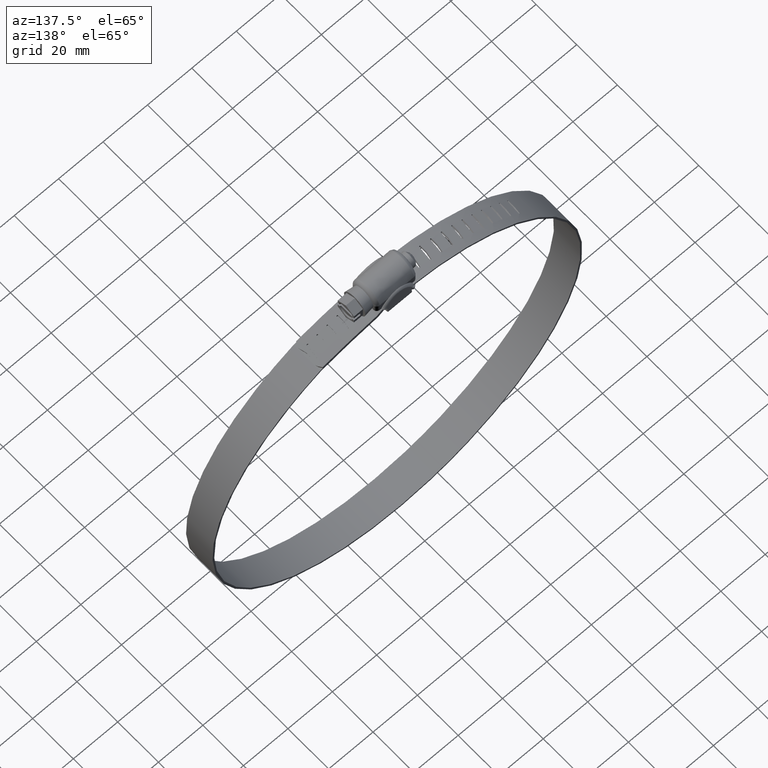
[diagram: clean part render]
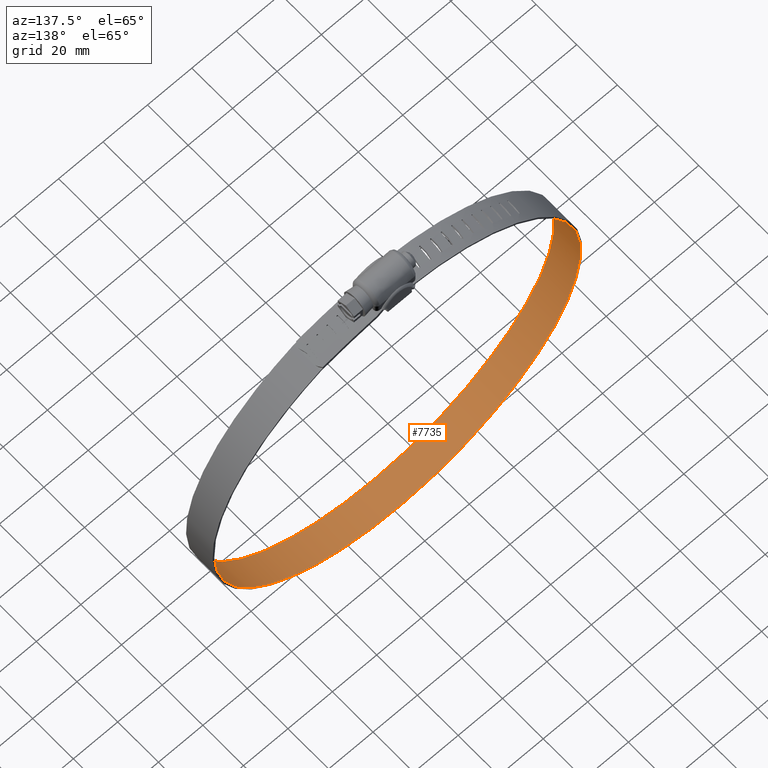
[diagram: same view with one face highlighted and labeled with its STEP entity id]
A machine part, auxiliary view. The second image highlights one B-rep face of the part: STEP entity #7735.
In plain terms, the highlighted face is a freeform B-spline surface patch.
Its self-contained STEP definition (entity closure, byte-faithful):
#3630=CARTESIAN_POINT('',(-8.921897772478159,-0.095494000000031,11.095660360621141));
#3631=VERTEX_POINT('',#3630);
#3646=CARTESIAN_POINT('',(-8.921897772478149,-2.789311000000000,11.095660360621000));
#3647=VERTEX_POINT('',#3646);
#3653=CARTESIAN_POINT('',(-8.921897772478159,-0.095494000000031,11.095660360621141));
#3654=CARTESIAN_POINT('',(-8.921897772478149,-2.789311000000000,11.095660360621000));
#3655=QUASI_UNIFORM_CURVE('',1,(#3653,#3654),.UNSPECIFIED.,.F.,.U.);
#3656=EDGE_CURVE('',#3631,#3647,#3655,.T.);
#3666=CARTESIAN_POINT('',(-8.889910604568881,0.213521000000015,11.099133683887819));
#3667=VERTEX_POINT('',#3666);
#3681=CARTESIAN_POINT('',(-8.889910604568881,0.213521000000015,11.099133683887819));
#3682=CARTESIAN_POINT('',(-8.921897772478159,-0.095494000000031,11.095660360621141));
#3683=QUASI_UNIFORM_CURVE('',1,(#3681,#3682),.UNSPECIFIED.,.F.,.U.);
#3684=EDGE_CURVE('',#3667,#3631,#3683,.T.);
#3694=CARTESIAN_POINT('',(-8.325184635257150,2.910689000000000,11.158377438581599));
#3695=VERTEX_POINT('',#3694);
#3709=CARTESIAN_POINT('',(-8.325184635257150,2.910689000000000,11.158377438581599));
#3710=CARTESIAN_POINT('',(-8.889910604568881,0.213521000000015,11.099133683887819));
#3711=QUASI_UNIFORM_CURVE('',1,(#3709,#3710),.UNSPECIFIED.,.F.,.U.);
#3712=EDGE_CURVE('',#3695,#3667,#3711,.T.);
#3735=CARTESIAN_POINT('',(-7.734561810811680,2.848222999999960,11.216138444491939));
#3736=VERTEX_POINT('',#3735);
#3765=CARTESIAN_POINT('',(-7.995397450919620,3.209040458979531,11.191158372720730));
#3766=VERTEX_POINT('',#3765);
#3767=CARTESIAN_POINT('',(-7.995397450919620,3.209040458979531,11.191158372720730));
#3768=CARTESIAN_POINT('',(-8.068092236961050,3.217214637274484,11.184060319231859));
#3769=CARTESIAN_POINT('',(-8.185983314721836,3.184589426900289,11.172469895691931));
#3770=CARTESIAN_POINT('',(-8.300012021325479,3.057195618735457,11.161093515008821));
#3771=CARTESIAN_POINT('',(-8.325309995178646,2.963061218108571,11.158455715531980));
#3772=CARTESIAN_POINT('',(-8.325184635257150,2.910689000000000,11.158377438581599));
#3773=B_SPLINE_CURVE_WITH_KNOTS('',3,(#3767,#3768,#3769,#3770,#3771,#3772),.UNSPECIFIED.,.F.,.U.,(4,1,1,4),(0.000002009614527,0.220066473479437,0.345756200153508,0.502934342593836),.UNSPECIFIED.);
#3774=EDGE_CURVE('',#3766,#3695,#3773,.T.);
#3776=CARTESIAN_POINT('',(-7.734561810811680,2.848222999999960,11.216138444491939));
#3777=CARTESIAN_POINT('',(-7.723607025554812,2.899428829840955,11.217300332698059));
#3778=CARTESIAN_POINT('',(-7.728859743462159,2.996798852857172,11.216950382922590));
#3779=CARTESIAN_POINT('',(-7.814082276719796,3.145190238446662,11.208840499632680));
#3780=CARTESIAN_POINT('',(-7.922563388511837,3.201914987833320,11.198292732854240));
#3781=CARTESIAN_POINT('',(-7.995397450919620,3.209040458979531,11.191158372720730));
#3782=B_SPLINE_CURVE_WITH_KNOTS('',3,(#3776,#3777,#3778,#3779,#3780,#3781),.UNSPECIFIED.,.F.,.U.,(4,1,1,4),(0.000002011994270,0.157180401147034,0.282870325677654,0.502935133371110),.UNSPECIFIED.);
#3783=EDGE_CURVE('',#3736,#3766,#3782,.T.);
#3793=CARTESIAN_POINT('',(-8.325184635257100,-2.789311000000000,11.158377438581940));
#3794=VERTEX_POINT('',#3793);
#3808=CARTESIAN_POINT('',(-8.325184635257100,-2.789311000000000,11.158377438581940));
#3809=CARTESIAN_POINT('',(-7.734561810811680,2.848222999999960,11.216138444491939));
#3810=QUASI_UNIFORM_CURVE('',1,(#3808,#3809),.UNSPECIFIED.,.F.,.U.);
#3811=EDGE_CURVE('',#3794,#3736,#3810,.T.);
#3856=CARTESIAN_POINT('',(-8.623599482612260,-3.089310998482468,11.127561235125190));
#3857=VERTEX_POINT('',#3856);
#3858=CARTESIAN_POINT('',(-8.623599482612260,-3.089310998482468,11.127561235125190));
#3859=CARTESIAN_POINT('',(-8.555166108623027,-3.089685169631052,11.134754556604239));
#3860=CARTESIAN_POINT('',(-8.438466017025528,-3.047020509838625,11.146942230809190));
#3861=CARTESIAN_POINT('',(-8.342671819174569,-2.916943154497780,11.156772798929740));
#3862=CARTESIAN_POINT('',(-8.325160308703698,-2.828565349442458,11.158451760308930));
#3863=CARTESIAN_POINT('',(-8.325184635257100,-2.789311000000000,11.158377438581940));
#3864=B_SPLINE_CURVE_WITH_KNOTS('',3,(#3858,#3859,#3860,#3861,#3862,#3863),.UNSPECIFIED.,.F.,.U.,(4,1,1,4),(0.000001325340737,0.206270692821964,0.353572665867515,0.471429802882243),.UNSPECIFIED.);
#3865=EDGE_CURVE('',#3857,#3794,#3864,.T.);
#3867=CARTESIAN_POINT('',(-8.921897772478149,-2.789311000000000,11.095660360621000));
#3868=CARTESIAN_POINT('',(-8.922283644412111,-2.858120999527790,11.095745602465460));
#3869=CARTESIAN_POINT('',(-8.879875694521607,-2.975455828979142,11.100417369459930));
#3870=CARTESIAN_POINT('',(-8.750528918304788,-3.071751809494770,11.114188312059429));
#3871=CARTESIAN_POINT('',(-8.662638723699940,-3.089342466134811,11.123458103062340));
#3872=CARTESIAN_POINT('',(-8.623599482612260,-3.089310998482468,11.127561235125190));
#3873=B_SPLINE_CURVE_WITH_KNOTS('',3,(#3867,#3868,#3869,#3870,#3871,#3872),.UNSPECIFIED.,.F.,.U.,(4,1,1,4),(0.000001367509025,0.206270076589048,0.353571584177995,0.471428370874363),.UNSPECIFIED.);
#3874=EDGE_CURVE('',#3647,#3857,#3873,.T.);
#3884=CARTESIAN_POINT('',(-13.912223137702799,-0.095494000000031,10.398014869320900));
#3885=VERTEX_POINT('',#3884);
#3900=CARTESIAN_POINT('',(-13.912223137702780,-2.789311000000000,10.398014869320860));
#3901=VERTEX_POINT('',#3900);
#3907=CARTESIAN_POINT('',(-13.912223137702799,-0.095494000000031,10.398014869320900));
#3908=CARTESIAN_POINT('',(-13.912223137702780,-2.789311000000000,10.398014869320860));
#3909=QUASI_UNIFORM_CURVE('',1,(#3907,#3908),.UNSPECIFIED.,.F.,.U.);
#3910=EDGE_CURVE('',#3885,#3901,#3909,.T.);
#3920=CARTESIAN_POINT('',(-13.880507673622301,0.213521000000015,10.403434484024141));
#3921=VERTEX_POINT('',#3920);
#3935=CARTESIAN_POINT('',(-13.880507673622301,0.213521000000015,10.403434484024141));
#3936=CARTESIAN_POINT('',(-13.912223137702799,-0.095494000000031,10.398014869320900));
#3937=QUASI_UNIFORM_CURVE('',1,(#3935,#3936),.UNSPECIFIED.,.F.,.U.);
#3938=EDGE_CURVE('',#3921,#3885,#3937,.T.);
#3948=CARTESIAN_POINT('',(-13.320451776780420,2.910689000000000,10.497043432837300));
#3949=VERTEX_POINT('',#3948);
#3963=CARTESIAN_POINT('',(-13.320451776780420,2.910689000000000,10.497043432837300));
#3964=CARTESIAN_POINT('',(-13.880507673622301,0.213521000000015,10.403434484024141));
#3965=QUASI_UNIFORM_CURVE('',1,(#3963,#3964),.UNSPECIFIED.,.F.,.U.);
#3966=EDGE_CURVE('',#3949,#3921,#3965,.T.);
#3989=CARTESIAN_POINT('',(-12.734456808012039,2.848222999999960,10.590753363676420));
#3990=VERTEX_POINT('',#3989);
#4019=CARTESIAN_POINT('',(-12.993280940173440,3.209040458979531,10.549896249887450));
#4020=VERTEX_POINT('',#4019);
#4021=CARTESIAN_POINT('',(-12.993280940173440,3.209040458979531,10.549896249887450));
#4022=CARTESIAN_POINT('',(-13.065427819595209,3.217310798680638,10.538370332124090));
#4023=CARTESIAN_POINT('',(-13.182347638228030,3.184520718312658,10.519611166144660));
#4024=CARTESIAN_POINT('',(-13.295502542165440,3.057203762766368,10.501289510837809));
#4025=CARTESIAN_POINT('',(-13.320577384259900,2.963067676309600,10.497114609379800));
#4026=CARTESIAN_POINT('',(-13.320451776780420,2.910689000000000,10.497043432837300));
#4027=B_SPLINE_CURVE_WITH_KNOTS('',3,(#4021,#4022,#4023,#4024,#4025,#4026),.UNSPECIFIED.,.F.,.U.,(4,1,1,4),(0.000002009614451,0.220066473479377,0.345756200153431,0.502934342593738),.UNSPECIFIED.);
#4028=EDGE_CURVE('',#4020,#3949,#4027,.T.);
#4030=CARTESIAN_POINT('',(-12.734456808012039,2.848222999999960,10.590753363676420));
#4031=CARTESIAN_POINT('',(-12.723589613285680,2.899428753549277,10.592582462987240));
#4032=CARTESIAN_POINT('',(-12.728828186684741,2.996787368036662,10.591909748802401));
#4033=CARTESIAN_POINT('',(-12.813346624397809,3.145255202382292,10.578620430721889));
#4034=CARTESIAN_POINT('',(-12.921058695291981,3.201826302388345,10.561457086379161));
#4035=CARTESIAN_POINT('',(-12.993280940173440,3.209040458979531,10.549896249887450));
#4036=B_SPLINE_CURVE_WITH_KNOTS('',3,(#4030,#4031,#4032,#4033,#4034,#4035),.UNSPECIFIED.,.F.,.U.,(4,1,1,4),(0.000002011994265,0.157180401147052,0.282870325677690,0.502935133371167),.UNSPECIFIED.);
#4037=EDGE_CURVE('',#3990,#4020,#4036,.T.);
#4047=CARTESIAN_POINT('',(-13.320451776780340,-2.789311000000000,10.497043432837300));
#4048=VERTEX_POINT('',#4047);
#4062=CARTESIAN_POINT('',(-13.320451776780340,-2.789311000000000,10.497043432837300));
#4063=CARTESIAN_POINT('',(-12.734456808012039,2.848222999999960,10.590753363676420));
#4064=QUASI_UNIFORM_CURVE('',1,(#4062,#4063),.UNSPECIFIED.,.F.,.U.);
#4065=EDGE_CURVE('',#4048,#3990,#4064,.T.);
#4110=CARTESIAN_POINT('',(-13.616428736076360,-3.089310998482468,10.448066917205630));
#4111=VERTEX_POINT('',#4110);
#4112=CARTESIAN_POINT('',(-13.616428736076360,-3.089310998482468,10.448066917205630));
#4113=CARTESIAN_POINT('',(-13.548552699009161,-3.089687523436947,10.459426164433239));
#4114=CARTESIAN_POINT('',(-13.432842922283410,-3.047011782223274,10.478710668899280));
#4115=CARTESIAN_POINT('',(-13.337793079318811,-2.916948509980307,10.494376789897840));
#4116=CARTESIAN_POINT('',(-13.320435128147800,-2.828569725756591,10.497118591129540));
#4117=CARTESIAN_POINT('',(-13.320451776780340,-2.789311000000000,10.497043432837300));
#4118=B_SPLINE_CURVE_WITH_KNOTS('',3,(#4112,#4113,#4114,#4115,#4116,#4117),.UNSPECIFIED.,.F.,.U.,(4,1,1,4),(0.000001325340706,0.206270692821986,0.353572665867553,0.471429802882284),.UNSPECIFIED.);
#4119=EDGE_CURVE('',#4111,#4048,#4118,.T.);
#4121=CARTESIAN_POINT('',(-13.912223137702780,-2.789311000000000,10.398014869320860));
#4122=CARTESIAN_POINT('',(-13.912619831470860,-2.858127245873020,10.398075346206349));
#4123=CARTESIAN_POINT('',(-13.870557935419381,-2.975439192365747,10.405330354652440));
#4124=CARTESIAN_POINT('',(-13.742311767627189,-3.071766201009651,10.426968978926361));
#4125=CARTESIAN_POINT('',(-13.655148575761750,-3.089339618037121,10.441587490956399));
#4126=CARTESIAN_POINT('',(-13.616428736076360,-3.089310998482468,10.448066917205630));
#4127=B_SPLINE_CURVE_WITH_KNOTS('',3,(#4121,#4122,#4123,#4124,#4125,#4126),.UNSPECIFIED.,.F.,.U.,(4,1,1,4),(0.000001367508992,0.206270076589004,0.353571584177941,0.471428370874310),.UNSPECIFIED.);
#4128=EDGE_CURVE('',#3901,#4111,#4127,.T.);
#4138=CARTESIAN_POINT('',(-18.850650301823901,-0.095494000000031,9.397018552141590));
#4139=VERTEX_POINT('',#4138);
#4154=CARTESIAN_POINT('',(-18.850650301823901,-2.789311000000000,9.397018552141381));
#4155=VERTEX_POINT('',#4154);
#4161=CARTESIAN_POINT('',(-18.850650301823901,-0.095494000000031,9.397018552141590));
#4162=CARTESIAN_POINT('',(-18.850650301823901,-2.789311000000000,9.397018552141381));
#4163=QUASI_UNIFORM_CURVE('',1,(#4161,#4162),.UNSPECIFIED.,.F.,.U.);
#4164=EDGE_CURVE('',#4139,#4155,#4163,.T.);
#4174=CARTESIAN_POINT('',(-18.819324853039600,0.213521000000015,9.404364240933939));
#4175=VERTEX_POINT('',#4174);
#4189=CARTESIAN_POINT('',(-18.819324853039600,0.213521000000015,9.404364240933939));
#4190=CARTESIAN_POINT('',(-18.850650301823901,-0.095494000000031,9.397018552141590));
#4191=QUASI_UNIFORM_CURVE('',1,(#4189,#4190),.UNSPECIFIED.,.F.,.U.);
#4192=EDGE_CURVE('',#4175,#4139,#4191,.T.);
#4202=CARTESIAN_POINT('',(-18.266028262952752,2.910689000000000,9.531989184747960));
#4203=VERTEX_POINT('',#4202);
#4217=CARTESIAN_POINT('',(-18.266028262952752,2.910689000000000,9.531989184747960));
#4218=CARTESIAN_POINT('',(-18.819324853039600,0.213521000000015,9.404364240933939));
#4219=QUASI_UNIFORM_CURVE('',1,(#4217,#4218),.UNSPECIFIED.,.F.,.U.);
#4220=EDGE_CURVE('',#4203,#4175,#4219,.T.);
#4243=CARTESIAN_POINT('',(-17.686847147342451,2.848222999999960,9.661298464693960));
#4244=VERTEX_POINT('',#4243);
#4274=CARTESIAN_POINT('',(-17.942694253197580,3.209040458979531,9.604716722393381));
#4275=VERTEX_POINT('',#4274);
#4276=CARTESIAN_POINT('',(-17.942694253197580,3.209040458979531,9.604716722393381));
#4277=CARTESIAN_POINT('',(-18.013998718082728,3.217192125609711,9.588808571080167));
#4278=CARTESIAN_POINT('',(-18.119018186945091,3.187589361824466,9.565305188006375));
#4279=CARTESIAN_POINT('',(-18.236091753197801,3.067448804192620,9.538950469509471));
#4280=CARTESIAN_POINT('',(-18.266330268338070,2.973641682797910,9.532032729816420));
#4281=CARTESIAN_POINT('',(-18.266028262952752,2.910689000000000,9.531989184747960));
#4282=B_SPLINE_CURVE_WITH_KNOTS('',3,(#4276,#4277,#4278,#4279,#4280,#4281),.UNSPECIFIED.,.F.,.U.,(4,1,1,4),(0.000002009614413,0.220066473479426,0.314306352385691,0.502934342593860),.UNSPECIFIED.);
#4283=EDGE_CURVE('',#4275,#4203,#4282,.T.);
#4285=CARTESIAN_POINT('',(-17.686847147342451,2.848222999999960,9.661298464693960));
#4286=CARTESIAN_POINT('',(-17.671477444725369,2.920005129056650,9.664859486041690));
#4287=CARTESIAN_POINT('',(-17.691092155396770,3.041228724005696,9.660683725744814));
#4288=CARTESIAN_POINT('',(-17.803070053049581,3.168533478657264,9.635866257214223));
#4289=CARTESIAN_POINT('',(-17.891853476854390,3.203673494231166,9.616075330447808));
#4290=CARTESIAN_POINT('',(-17.942694253197580,3.209040458979531,9.604716722393381));
#4291=B_SPLINE_CURVE_WITH_KNOTS('',3,(#4285,#4286,#4287,#4288,#4289,#4290),.UNSPECIFIED.,.F.,.U.,(4,1,1,4),(0.000002011994304,0.220066819686959,0.345756744218103,0.502935133371106),.UNSPECIFIED.);
#4292=EDGE_CURVE('',#4244,#4275,#4291,.T.);
#4302=CARTESIAN_POINT('',(-18.266028262952648,-2.789311000000000,9.531989184747960));
#4303=VERTEX_POINT('',#4302);
#4317=CARTESIAN_POINT('',(-18.266028262952648,-2.789311000000000,9.531989184747960));
#4318=CARTESIAN_POINT('',(-17.686847147342451,2.848222999999960,9.661298464693960));
#4319=QUASI_UNIFORM_CURVE('',1,(#4317,#4318),.UNSPECIFIED.,.F.,.U.);
#4320=EDGE_CURVE('',#4303,#4244,#4319,.T.);
#4365=CARTESIAN_POINT('',(-18.558463220806338,-3.089310998482467,9.465035059089304));
#4366=VERTEX_POINT('',#4365);
#4367=CARTESIAN_POINT('',(-18.558463220806338,-3.089310998482467,9.465035059089304));
#4368=CARTESIAN_POINT('',(-18.520210190844011,-3.089339562829546,9.473866520210768));
#4369=CARTESIAN_POINT('',(-18.434090544485379,-3.071769462315494,9.493716021116617));
#4370=CARTESIAN_POINT('',(-18.307320063088159,-2.975437635262440,9.522803536332974));
#4371=CARTESIAN_POINT('',(-18.265690444291220,-2.858128549061615,9.532195590793055));
#4372=CARTESIAN_POINT('',(-18.266028262952648,-2.789311000000000,9.531989184747960));
#4373=B_SPLINE_CURVE_WITH_KNOTS('',3,(#4367,#4368,#4369,#4370,#4371,#4372),.UNSPECIFIED.,.F.,.U.,(4,1,1,4),(0.000001325340612,0.117858450944383,0.265160417544439,0.471429802882371),.UNSPECIFIED.);
#4374=EDGE_CURVE('',#4366,#4303,#4373,.T.);
#4376=CARTESIAN_POINT('',(-18.850650301823901,-2.789311000000000,9.397018552141381));
#4377=CARTESIAN_POINT('',(-18.851258781962180,-2.868062925828947,9.397025025573472));
#4378=CARTESIAN_POINT('',(-18.803150203111159,-2.984840316249239,9.408349674329974));
#4379=CARTESIAN_POINT('',(-18.673205499227191,-3.073677092687958,9.438515543711032));
#4380=CARTESIAN_POINT('',(-18.596720349254891,-3.089341696939070,9.456202762317945));
#4381=CARTESIAN_POINT('',(-18.558463220806338,-3.089310998482467,9.465035059089304));
#4382=B_SPLINE_CURVE_WITH_KNOTS('',3,(#4376,#4377,#4378,#4379,#4380,#4381),.UNSPECIFIED.,.F.,.U.,(4,1,1,4),(0.000001367508890,0.235714832147985,0.353571584177930,0.471428370874295),.UNSPECIFIED.);
#4383=EDGE_CURVE('',#4155,#4366,#4382,.T.);
#4393=CARTESIAN_POINT('',(-23.718756940561398,-0.095494000000031,8.096405528903670));
#4394=VERTEX_POINT('',#4393);
#4409=CARTESIAN_POINT('',(-23.718756940561349,-2.789311000000000,8.096405528903551));
#4410=VERTEX_POINT('',#4409);
#4416=CARTESIAN_POINT('',(-23.718756940561398,-0.095494000000031,8.096405528903670));
#4417=CARTESIAN_POINT('',(-23.718756940561349,-2.789311000000000,8.096405528903551));
#4418=QUASI_UNIFORM_CURVE('',1,(#4416,#4417),.UNSPECIFIED.,.F.,.U.);
#4419=EDGE_CURVE('',#4394,#4410,#4418,.T.);
#4429=CARTESIAN_POINT('',(-23.687938363626149,0.213521000000015,8.105649889403988));
#4430=VERTEX_POINT('',#4429);
#4444=CARTESIAN_POINT('',(-23.687938363626149,0.213521000000015,8.105649889403988));
#4445=CARTESIAN_POINT('',(-23.718756940561398,-0.095494000000031,8.096405528903670));
#4446=QUASI_UNIFORM_CURVE('',1,(#4444,#4445),.UNSPECIFIED.,.F.,.U.);
#4447=EDGE_CURVE('',#4430,#4394,#4446,.T.);
#4457=CARTESIAN_POINT('',(-23.143465099640501,2.910689000000000,8.266814735726211));
#4458=VERTEX_POINT('',#4457);
#4472=CARTESIAN_POINT('',(-23.143465099640501,2.910689000000000,8.266814735726211));
#4473=CARTESIAN_POINT('',(-23.687938363626149,0.213521000000015,8.105649889403988));
#4474=QUASI_UNIFORM_CURVE('',1,(#4472,#4473),.UNSPECIFIED.,.F.,.U.);
#4475=EDGE_CURVE('',#4458,#4430,#4474,.T.);
#4498=CARTESIAN_POINT('',(-22.573258416250049,2.848222999999960,8.431240989033281));
#4499=VERTEX_POINT('',#4498);
#4528=CARTESIAN_POINT('',(-22.825174082947619,3.209040458979528,8.359145690931145));
#4529=VERTEX_POINT('',#4528);
#4530=CARTESIAN_POINT('',(-22.825174082947619,3.209040458979528,8.359145690931145));
#4531=CARTESIAN_POINT('',(-22.875183794670271,3.214611242633662,8.344732620596609));
#4532=CARTESIAN_POINT('',(-22.988449001962561,3.195938496204016,8.312032941691509));
#4533=CARTESIAN_POINT('',(-23.113939397361769,3.078333497490938,8.275630298170194));
#4534=CARTESIAN_POINT('',(-23.143574959434869,2.963024298995845,8.266876769732507));
#4535=CARTESIAN_POINT('',(-23.143465099640501,2.910689000000000,8.266814735726211));
#4536=B_SPLINE_CURVE_WITH_KNOTS('',3,(#4530,#4531,#4532,#4533,#4534,#4535),.UNSPECIFIED.,.F.,.U.,(4,1,1,4),(0.000002009614544,0.157180152732650,0.345756200153668,0.502934342594052),.UNSPECIFIED.);
#4537=EDGE_CURVE('',#4529,#4458,#4536,.T.);
#4539=CARTESIAN_POINT('',(-22.573258416250049,2.848222999999960,8.431240989033281));
#4540=CARTESIAN_POINT('',(-22.567000852342279,2.878938286047367,8.433101667076674));
#4541=CARTESIAN_POINT('',(-22.562626979558051,2.963710712221957,8.434513651782826));
#4542=CARTESIAN_POINT('',(-22.603701774638640,3.074905860089126,8.422850694416226));
#4543=CARTESIAN_POINT('',(-22.697440599329081,3.172414236545671,8.395959057203706));
#4544=CARTESIAN_POINT('',(-22.775108351246399,3.203675889560489,8.373590686126169));
#4545=CARTESIAN_POINT('',(-22.825174082947619,3.209040458979528,8.359145690931145));
#4546=B_SPLINE_CURVE_WITH_KNOTS('',3,(#4539,#4540,#4541,#4542,#4543,#4544,#4545),.UNSPECIFIED.,.F.,.U.,(4,1,1,1,4),(0.000002011994341,0.094290183529717,0.251468572612455,0.345756744218039,0.502935133370994),.UNSPECIFIED.);
#4547=EDGE_CURVE('',#4499,#4529,#4546,.T.);
#4557=CARTESIAN_POINT('',(-23.143465099640249,-2.789311000000000,8.266814735725770));
#4558=VERTEX_POINT('',#4557);
#4572=CARTESIAN_POINT('',(-23.143465099640249,-2.789311000000000,8.266814735725770));
#4573=CARTESIAN_POINT('',(-22.573258416250049,2.848222999999960,8.431240989033281));
#4574=QUASI_UNIFORM_CURVE('',1,(#4572,#4573),.UNSPECIFIED.,.F.,.U.);
#4575=EDGE_CURVE('',#4558,#4499,#4574,.T.);
#4620=CARTESIAN_POINT('',(-23.431267155761962,-3.089310998482467,8.182132765922422));
#4621=VERTEX_POINT('',#4620);
#4622=CARTESIAN_POINT('',(-23.431267155761962,-3.089310998482467,8.182132765922422));
#4623=CARTESIAN_POINT('',(-23.393629406247470,-3.089345341484457,8.193281640359761));
#4624=CARTESIAN_POINT('',(-23.308882374703490,-3.071748905046129,8.218351487020437));
#4625=CARTESIAN_POINT('',(-23.184109903257760,-2.975461091973400,8.255128188485989));
#4626=CARTESIAN_POINT('',(-23.143144744762289,-2.858119575113614,8.267040109259966));
#4627=CARTESIAN_POINT('',(-23.143465099640249,-2.789311000000000,8.266814735725770));
#4628=B_SPLINE_CURVE_WITH_KNOTS('',3,(#4622,#4623,#4624,#4625,#4626,#4627),.UNSPECIFIED.,.F.,.U.,(4,1,1,4),(0.000001325340761,0.117858450944495,0.265160417544489,0.471429802882406),.UNSPECIFIED.);
#4629=EDGE_CURVE('',#4621,#4558,#4628,.T.);
#4631=CARTESIAN_POINT('',(-23.718756940561349,-2.789311000000000,8.096405528903551));
#4632=CARTESIAN_POINT('',(-23.718812981173869,-2.828558581700273,8.096463353191719));
#4633=CARTESIAN_POINT('',(-23.701995954892318,-2.916955420445665,8.101612408190892));
#4634=CARTESIAN_POINT('',(-23.609713459826281,-3.047007155712998,8.129194342681942));
#4635=CARTESIAN_POINT('',(-23.497248929749261,-3.089686673743875,8.162588786407868));
#4636=CARTESIAN_POINT('',(-23.431267155761962,-3.089310998482467,8.182132765922422));
#4637=B_SPLINE_CURVE_WITH_KNOTS('',3,(#4631,#4632,#4633,#4634,#4635,#4636),.UNSPECIFIED.,.F.,.U.,(4,1,1,4),(0.000001367509126,0.117858119207933,0.265159607020871,0.471428370874233),.UNSPECIFIED.);
#4638=EDGE_CURVE('',#4410,#4621,#4637,.T.);
#4648=CARTESIAN_POINT('',(-28.498383053545151,-0.095494000000031,6.501027610534390));
#4649=VERTEX_POINT('',#4648);
#4664=CARTESIAN_POINT('',(-28.498383053545052,-2.789311000000000,6.501027610534339));
#4665=VERTEX_POINT('',#4664);
#4671=CARTESIAN_POINT('',(-28.498383053545151,-0.095494000000031,6.501027610534390));
#4672=CARTESIAN_POINT('',(-28.498383053545052,-2.789311000000000,6.501027610534339));
#4673=QUASI_UNIFORM_CURVE('',1,(#4671,#4672),.UNSPECIFIED.,.F.,.U.);
#4674=EDGE_CURVE('',#4649,#4665,#4673,.T.);
#4684=CARTESIAN_POINT('',(-28.468186314175750,0.213521000000015,6.512136157551530));
#4685=VERTEX_POINT('',#4684);
#4699=CARTESIAN_POINT('',(-28.468186314175750,0.213521000000015,6.512136157551530));
#4700=CARTESIAN_POINT('',(-28.498383053545151,-0.095494000000031,6.501027610534390));
#4701=QUASI_UNIFORM_CURVE('',1,(#4699,#4700),.UNSPECIFIED.,.F.,.U.);
#4702=EDGE_CURVE('',#4685,#4649,#4701,.T.);
#4712=CARTESIAN_POINT('',(-27.934567481073550,2.910689000000000,6.706239696529840));
#4713=VERTEX_POINT('',#4712);
#4727=CARTESIAN_POINT('',(-27.934567481073550,2.910689000000000,6.706239696529840));
#4728=CARTESIAN_POINT('',(-28.468186314175750,0.213521000000015,6.512136157551530));
#4729=QUASI_UNIFORM_CURVE('',1,(#4727,#4728),.UNSPECIFIED.,.F.,.U.);
#4730=EDGE_CURVE('',#4713,#4685,#4729,.T.);
#4753=CARTESIAN_POINT('',(-27.375462330714399,2.848222999999960,6.905169546983960));
#4754=VERTEX_POINT('',#4753);
#4784=CARTESIAN_POINT('',(-27.622506811256240,3.209040458979530,6.817829637607868));
#4785=VERTEX_POINT('',#4784);
#4786=CARTESIAN_POINT('',(-27.622506811256240,3.209040458979530,6.817829637607868));
#4787=CARTESIAN_POINT('',(-27.671567768168380,3.214637379080261,6.800381788603572));
#4788=CARTESIAN_POINT('',(-27.762270044183150,3.199207698870906,6.768077705574994));
#4789=CARTESIAN_POINT('',(-27.892875012575882,3.098573807998381,6.721418862575795));
#4790=CARTESIAN_POINT('',(-27.935066191624280,2.984182707125338,6.706196453655495));
#4791=CARTESIAN_POINT('',(-27.934567481073550,2.910689000000000,6.706239696529840));
#4792=B_SPLINE_CURVE_WITH_KNOTS('',3,(#4786,#4787,#4788,#4789,#4790,#4791),.UNSPECIFIED.,.F.,.U.,(4,1,1,4),(0.000002009614458,0.157180152732701,0.282869880912287,0.502934342594333),.UNSPECIFIED.);
#4793=EDGE_CURVE('',#4785,#4713,#4792,.T.);
#4795=CARTESIAN_POINT('',(-27.375462330714399,2.848222999999960,6.905169546983960));
#4796=CARTESIAN_POINT('',(-27.365111293592051,2.899427833564769,6.908948099365996));
#4797=CARTESIAN_POINT('',(-27.370136875247841,2.996787172955990,6.907332951095813));
#4798=CARTESIAN_POINT('',(-27.450820941512571,3.145253234042153,6.878862943035032));
#4799=CARTESIAN_POINT('',(-27.553600437662979,3.201827913074828,6.842358452459354));
#4800=CARTESIAN_POINT('',(-27.622506811256240,3.209040458979530,6.817829637607868));
#4801=B_SPLINE_CURVE_WITH_KNOTS('',3,(#4795,#4796,#4797,#4798,#4799,#4800),.UNSPECIFIED.,.F.,.U.,(4,1,1,4),(0.000002011994357,0.157180401147005,0.282870325677536,0.502935133370874),.UNSPECIFIED.);
#4802=EDGE_CURVE('',#4754,#4785,#4801,.T.);
#4812=CARTESIAN_POINT('',(-27.934567481073451,-2.789311000000000,6.706239696529730));
#4813=VERTEX_POINT('',#4812);
#4827=CARTESIAN_POINT('',(-27.934567481073451,-2.789311000000000,6.706239696529730));
#4828=CARTESIAN_POINT('',(-27.375462330714399,2.848222999999960,6.905169546983960));
#4829=QUASI_UNIFORM_CURVE('',1,(#4827,#4828),.UNSPECIFIED.,.F.,.U.);
#4830=EDGE_CURVE('',#4813,#4754,#4829,.T.);
#4875=CARTESIAN_POINT('',(-28.216663017763739,-3.089310998482468,6.604145780468858));
#4876=VERTEX_POINT('',#4875);
#4877=CARTESIAN_POINT('',(-28.216663017763739,-3.089310998482468,6.604145780468858));
#4878=CARTESIAN_POINT('',(-28.152002661409991,-3.089685189287406,6.627680949508308));
#4879=CARTESIAN_POINT('',(-28.041717491520899,-3.047020546209857,6.667738917850667));
#4880=CARTESIAN_POINT('',(-27.951146819844670,-2.916942878273985,6.700452262414490));
#4881=CARTESIAN_POINT('',(-27.934561899209431,-2.828565406406558,6.706317680520883));
#4882=CARTESIAN_POINT('',(-27.934567481073451,-2.789311000000000,6.706239696529730));
#4883=B_SPLINE_CURVE_WITH_KNOTS('',3,(#4877,#4878,#4879,#4880,#4881,#4882),.UNSPECIFIED.,.F.,.U.,(4,1,1,4),(0.000001325340788,0.206270692821863,0.353572665867326,0.471429802881962),.UNSPECIFIED.);
#4884=EDGE_CURVE('',#4876,#4813,#4883,.T.);
#4886=CARTESIAN_POINT('',(-28.498383053545052,-2.789311000000000,6.501027610534339));
#4887=CARTESIAN_POINT('',(-28.498780298796909,-2.858130581343378,6.501016182355442));
#4888=CARTESIAN_POINT('',(-28.458751813417638,-2.975436379735662,6.515812331594779));
#4889=CARTESIAN_POINT('',(-28.336591963325681,-3.071767350369276,6.560461269254006));
#4890=CARTESIAN_POINT('',(-28.253554092625372,-3.089339323330920,6.590718582101235));
#4891=CARTESIAN_POINT('',(-28.216663017763739,-3.089310998482468,6.604145780468858));
#4892=B_SPLINE_CURVE_WITH_KNOTS('',3,(#4886,#4887,#4888,#4889,#4890,#4891),.UNSPECIFIED.,.F.,.U.,(4,1,1,4),(0.000001367509060,0.206270076589140,0.353571584178116,0.471428370874542),.UNSPECIFIED.);
#4893=EDGE_CURVE('',#4665,#4876,#4892,.T.);
#4903=CARTESIAN_POINT('',(-33.171698708437397,-0.095494000000031,4.616836199855980));
#4904=VERTEX_POINT('',#4903);
#4919=CARTESIAN_POINT('',(-33.171698708437347,-2.789311000000000,4.616836199855849));
#4920=VERTEX_POINT('',#4919);
#4926=CARTESIAN_POINT('',(-33.171698708437397,-0.095494000000031,4.616836199855980));
#4927=CARTESIAN_POINT('',(-33.171698708437347,-2.789311000000000,4.616836199855849));
#4928=QUASI_UNIFORM_CURVE('',1,(#4926,#4927),.UNSPECIFIED.,.F.,.U.);
#4929=EDGE_CURVE('',#4904,#4920,#4928,.T.);
#4939=CARTESIAN_POINT('',(-33.142236452645648,0.213521000000015,4.629767494030769));
#4940=VERTEX_POINT('',#4939);
#4954=CARTESIAN_POINT('',(-33.142236452645648,0.213521000000015,4.629767494030769));
#4955=CARTESIAN_POINT('',(-33.171698708437397,-0.095494000000031,4.616836199855980));
#4956=QUASI_UNIFORM_CURVE('',1,(#4954,#4955),.UNSPECIFIED.,.F.,.U.);
#4957=EDGE_CURVE('',#4940,#4904,#4956,.T.);
#4967=CARTESIAN_POINT('',(-32.621462663806199,2.910689000000000,4.856085641210870));
#4968=VERTEX_POINT('',#4967);
#4982=CARTESIAN_POINT('',(-32.621462663806199,2.910689000000000,4.856085641210870));
#4983=CARTESIAN_POINT('',(-33.142236452645648,0.213521000000015,4.629767494030769));
#4984=QUASI_UNIFORM_CURVE('',1,(#4982,#4983),.UNSPECIFIED.,.F.,.U.);
#4985=EDGE_CURVE('',#4968,#4940,#4984,.T.);
#5008=CARTESIAN_POINT('',(-32.075544734096198,2.848222999999960,5.088777000270330));
#5009=VERTEX_POINT('',#5008);
#5038=CARTESIAN_POINT('',(-32.316796452972483,3.209040458979526,4.986518292693524));
#5039=VERTEX_POINT('',#5038);
#5040=CARTESIAN_POINT('',(-32.316796452972483,3.209040458979526,4.986518292693524));
#5041=CARTESIAN_POINT('',(-32.364676888469397,3.214611242633692,4.966118004468016));
#5042=CARTESIAN_POINT('',(-32.473112745684311,3.195938496204124,4.919858507567287));
#5043=CARTESIAN_POINT('',(-32.593231388441772,3.078333497490986,4.868433771739446));
#5044=CARTESIAN_POINT('',(-32.621579264765892,2.963024298995860,4.856133824284056));
#5045=CARTESIAN_POINT('',(-32.621462663806199,2.910689000000000,4.856085641210870));
#5046=B_SPLINE_CURVE_WITH_KNOTS('',3,(#5040,#5041,#5042,#5043,#5044,#5045),.UNSPECIFIED.,.F.,.U.,(4,1,1,4),(0.000002009614554,0.157180152732783,0.345756200153811,0.502934342594246),.UNSPECIFIED.);
#5047=EDGE_CURVE('',#5039,#4968,#5046,.T.);
#5049=CARTESIAN_POINT('',(-32.075544734096198,2.848222999999960,5.088777000270330));
#5050=CARTESIAN_POINT('',(-32.067514106327678,2.889188834058600,5.092278316964095));
#5051=CARTESIAN_POINT('',(-32.067562878324154,2.985553447314590,5.092434674800028));
#5052=CARTESIAN_POINT('',(-32.139929493745953,3.140083037728883,5.061845952559990));
#5053=CARTESIAN_POINT('',(-32.249516519227569,3.201901536782782,5.015207925853332));
#5054=CARTESIAN_POINT('',(-32.316796452972483,3.209040458979526,4.986518292693524));
#5055=B_SPLINE_CURVE_WITH_KNOTS('',3,(#5049,#5050,#5051,#5052,#5053,#5054),.UNSPECIFIED.,.F.,.U.,(4,1,1,4),(0.000002011994212,0.125735292284601,0.282870325677549,0.502935133370912),.UNSPECIFIED.);
#5056=EDGE_CURVE('',#5009,#5039,#5055,.T.);
#5066=CARTESIAN_POINT('',(-32.621462663806149,-2.789311000000000,4.856085641211090));
#5067=VERTEX_POINT('',#5066);
#5081=CARTESIAN_POINT('',(-32.621462663806149,-2.789311000000000,4.856085641211090));
#5082=CARTESIAN_POINT('',(-32.075544734096198,2.848222999999960,5.088777000270330));
#5083=QUASI_UNIFORM_CURVE('',1,(#5081,#5082),.UNSPECIFIED.,.F.,.U.);
#5084=EDGE_CURVE('',#5067,#5009,#5083,.T.);
#5129=CARTESIAN_POINT('',(-32.896799350985553,-3.089310998482467,4.736960630359162));
#5130=VERTEX_POINT('',#5129);
#5131=CARTESIAN_POINT('',(-32.896799350985553,-3.089310998482467,4.736960630359162));
#5132=CARTESIAN_POINT('',(-32.851797312335052,-3.089390103993718,4.756528230482978));
#5133=CARTESIAN_POINT('',(-32.752683080769401,-3.062304329214564,4.799570623894199));
#5134=CARTESIAN_POINT('',(-32.646350186388169,-2.946443935653720,4.845575774323925));
#5135=CARTESIAN_POINT('',(-32.621420454852817,-2.838387938525179,4.856201295419645));
#5136=CARTESIAN_POINT('',(-32.621462663806149,-2.789311000000000,4.856085641211090));
#5137=B_SPLINE_CURVE_WITH_KNOTS('',3,(#5131,#5132,#5133,#5134,#5135,#5136),.UNSPECIFIED.,.F.,.U.,(4,1,1,4),(0.000001325340898,0.147335650831171,0.324095465254769,0.471429802882143),.UNSPECIFIED.);
#5138=EDGE_CURVE('',#5130,#5067,#5137,.T.);
#5140=CARTESIAN_POINT('',(-33.171698708437347,-2.789311000000000,4.616836199855849));
#5141=CARTESIAN_POINT('',(-33.172092353758622,-2.858120999527817,4.616801462519481));
#5142=CARTESIAN_POINT('',(-33.133052000530498,-2.975455828979132,4.634009322369238));
#5143=CARTESIAN_POINT('',(-33.013832789832371,-3.071751809494818,4.686038229509841));
#5144=CARTESIAN_POINT('',(-32.932797901347698,-3.089342466134820,4.721308077556336));
#5145=CARTESIAN_POINT('',(-32.896799350985553,-3.089310998482467,4.736960630359162));
#5146=B_SPLINE_CURVE_WITH_KNOTS('',3,(#5140,#5141,#5142,#5143,#5144,#5145),.UNSPECIFIED.,.F.,.U.,(4,1,1,4),(0.000001367509261,0.206270076589187,0.353571584178090,0.471428370874468),.UNSPECIFIED.);
#5147=EDGE_CURVE('',#4920,#5130,#5146,.T.);
#5157=CARTESIAN_POINT('',(-37.721270553769003,-0.095494000000031,2.450860090453700));
#5158=VERTEX_POINT('',#5157);
#5173=CARTESIAN_POINT('',(-37.721270553768953,-2.789311000000000,2.450860090453560));
#5174=VERTEX_POINT('',#5173);
#5180=CARTESIAN_POINT('',(-37.721270553769003,-0.095494000000031,2.450860090453700));
#5181=CARTESIAN_POINT('',(-37.721270553768953,-2.789311000000000,2.450860090453560));
#5182=QUASI_UNIFORM_CURVE('',1,(#5180,#5181),.UNSPECIFIED.,.F.,.U.);
#5183=EDGE_CURVE('',#5158,#5174,#5182,.T.);
#5193=CARTESIAN_POINT('',(-37.692652687646962,0.213521000000015,2.465565892845635));
#5194=VERTEX_POINT('',#5193);
#5208=CARTESIAN_POINT('',(-37.692652687646962,0.213521000000015,2.465565892845635));
#5209=CARTESIAN_POINT('',(-37.721270553769003,-0.095494000000031,2.450860090453700));
#5210=QUASI_UNIFORM_CURVE('',1,(#5208,#5209),.UNSPECIFIED.,.F.,.U.);
#5211=EDGE_CURVE('',#5194,#5158,#5210,.T.);
#5221=CARTESIAN_POINT('',(-37.186666639255947,2.910689000000000,2.723254390297415));
#5222=VERTEX_POINT('',#5221);
#5236=CARTESIAN_POINT('',(-37.186666639255947,2.910689000000000,2.723254390297415));
#5237=CARTESIAN_POINT('',(-37.692652687646962,0.213521000000015,2.465565892845635));
#5238=QUASI_UNIFORM_CURVE('',1,(#5236,#5237),.UNSPECIFIED.,.F.,.U.);
#5239=EDGE_CURVE('',#5222,#5194,#5238,.T.);
#5262=CARTESIAN_POINT('',(-36.655972424162847,2.848222999999960,2.988839225381025));
#5263=VERTEX_POINT('',#5262);
#5292=CARTESIAN_POINT('',(-36.890531415200577,3.209040458979530,2.872043185809155));
#5293=VERTEX_POINT('',#5292);
#5294=CARTESIAN_POINT('',(-36.890531415200577,3.209040458979530,2.872043185809155));
#5295=CARTESIAN_POINT('',(-36.927794660989527,3.213477883454930,2.853401586541654));
#5296=CARTESIAN_POINT('',(-37.003942296220529,3.204463904173787,2.815272591395772));
#5297=CARTESIAN_POINT('',(-37.095085324138580,3.145612139952765,2.769542558156518));
#5298=CARTESIAN_POINT('',(-37.166630430825244,3.046735370847588,2.733544211957104));
#5299=CARTESIAN_POINT('',(-37.186819487720143,2.963064987663069,2.723278665071427));
#5300=CARTESIAN_POINT('',(-37.186666639255947,2.910689000000000,2.723254390297415));
#5301=B_SPLINE_CURVE_WITH_KNOTS('',3,(#5294,#5295,#5296,#5297,#5298,#5299,#5300),.UNSPECIFIED.,.F.,.U.,(4,1,1,1,4),(0.000002009614223,0.125735092940017,0.251468177878257,0.345756200153311,0.502934342593620),.UNSPECIFIED.);
#5302=EDGE_CURVE('',#5293,#5222,#5301,.T.);
#5304=CARTESIAN_POINT('',(-36.655972424162847,2.848222999999960,2.988839225381025));
#5305=CARTESIAN_POINT('',(-36.646156516910331,2.899428303528369,2.993852347570643));
#5306=CARTESIAN_POINT('',(-36.650953305785137,2.996787444360064,2.991634016889174));
#5307=CARTESIAN_POINT('',(-36.727572555279018,3.145215378087961,2.953540122788356));
#5308=CARTESIAN_POINT('',(-36.825109687420252,3.201875972628555,2.904795988704400));
#5309=CARTESIAN_POINT('',(-36.890531415200577,3.209040458979530,2.872043185809155));
#5310=B_SPLINE_CURVE_WITH_KNOTS('',3,(#5304,#5305,#5306,#5307,#5308,#5309),.UNSPECIFIED.,.F.,.U.,(4,1,1,4),(0.000002011993761,0.157180401146758,0.282870325677582,0.502935133371218),.UNSPECIFIED.);
#5311=EDGE_CURVE('',#5263,#5293,#5310,.T.);
#5321=CARTESIAN_POINT('',(-37.186666639255762,-2.789311000000000,2.723254390297080));
#5322=VERTEX_POINT('',#5321);
#5336=CARTESIAN_POINT('',(-37.186666639255762,-2.789311000000000,2.723254390297080));
#5337=CARTESIAN_POINT('',(-36.655972424162847,2.848222999999960,2.988839225381025));
#5338=QUASI_UNIFORM_CURVE('',1,(#5336,#5337),.UNSPECIFIED.,.F.,.U.);
#5339=EDGE_CURVE('',#5322,#5263,#5338,.T.);
#5384=CARTESIAN_POINT('',(-37.454217360077394,-3.089310998482468,2.587542668970898));
#5385=VERTEX_POINT('',#5384);
#5386=CARTESIAN_POINT('',(-37.454217360077394,-3.089310998482468,2.587542668970898));
#5387=CARTESIAN_POINT('',(-37.392906103400037,-3.089682651245302,2.618783072958994));
#5388=CARTESIAN_POINT('',(-37.288328749910448,-3.047024821701021,2.671980848414613));
#5389=CARTESIAN_POINT('',(-37.202414504790610,-2.916940267642314,2.715490892262618));
#5390=CARTESIAN_POINT('',(-37.186671443369207,-2.828566112483455,2.723332046443467));
#5391=CARTESIAN_POINT('',(-37.186666639255762,-2.789311000000000,2.723254390297080));
#5392=B_SPLINE_CURVE_WITH_KNOTS('',3,(#5386,#5387,#5388,#5389,#5390,#5391),.UNSPECIFIED.,.F.,.U.,(4,1,1,4),(0.000001325340695,0.206270692821910,0.353572665867486,0.471429802882233),.UNSPECIFIED.);
#5393=EDGE_CURVE('',#5385,#5322,#5392,.T.);
#5395=CARTESIAN_POINT('',(-37.721270553768953,-2.789311000000000,2.450860090453560));
#5396=CARTESIAN_POINT('',(-37.721329357941201,-2.828569737343135,2.450910239592560));
#5397=CARTESIAN_POINT('',(-37.705745863742877,-2.916948032222761,2.459030771192547));
#5398=CARTESIAN_POINT('',(-37.620023232792718,-3.047012161673002,2.502974042095294));
#5399=CARTESIAN_POINT('',(-37.515534418824423,-3.089684957140245,2.556300830127126));
#5400=CARTESIAN_POINT('',(-37.454217360077394,-3.089310998482468,2.587542668970898));
#5401=B_SPLINE_CURVE_WITH_KNOTS('',3,(#5395,#5396,#5397,#5398,#5399,#5400),.UNSPECIFIED.,.F.,.U.,(4,1,1,4),(0.000001367509214,0.117858119208030,0.265159607020943,0.471428370874309),.UNSPECIFIED.);
#5402=EDGE_CURVE('',#5174,#5385,#5401,.T.);
#5412=CARTESIAN_POINT('',(-42.130126852368399,-0.095494000000031,0.011179246442339));
#5413=VERTEX_POINT('',#5412);
#5428=CARTESIAN_POINT('',(-42.130126852368399,-2.789311000000000,0.011179246442297));
#5429=VERTEX_POINT('',#5428);
#5435=CARTESIAN_POINT('',(-42.130126852368399,-0.095494000000031,0.011179246442339));
#5436=CARTESIAN_POINT('',(-42.130126852368399,-2.789311000000000,0.011179246442297));
#5437=QUASI_UNIFORM_CURVE('',1,(#5435,#5436),.UNSPECIFIED.,.F.,.U.);
#5438=EDGE_CURVE('',#5413,#5429,#5437,.T.);
#5448=CARTESIAN_POINT('',(-42.102460132094350,0.213521000000015,0.027604698480066));
#5449=VERTEX_POINT('',#5448);
#5463=CARTESIAN_POINT('',(-42.102460132094350,0.213521000000015,0.027604698480066));
#5464=CARTESIAN_POINT('',(-42.130126852368399,-0.095494000000031,0.011179246442339));
#5465=QUASI_UNIFORM_CURVE('',1,(#5463,#5464),.UNSPECIFIED.,.F.,.U.);
#5466=EDGE_CURVE('',#5449,#5413,#5465,.T.);
#5476=CARTESIAN_POINT('',(-41.613149356103349,2.910689000000000,0.315702264218509));
#5477=VERTEX_POINT('',#5476);
#5491=CARTESIAN_POINT('',(-41.613149356103349,2.910689000000000,0.315702264218509));
#5492=CARTESIAN_POINT('',(-42.102460132094350,0.213521000000015,0.027604698480066));
#5493=QUASI_UNIFORM_CURVE('',1,(#5491,#5492),.UNSPECIFIED.,.F.,.U.);
#5494=EDGE_CURVE('',#5477,#5449,#5493,.T.);
#5517=CARTESIAN_POINT('',(-41.099658559002400,2.848222999999960,0.613189836819947));
#5518=VERTEX_POINT('',#5517);
#5547=CARTESIAN_POINT('',(-41.326649822600181,3.209040458979532,0.482292161568020));
#5548=VERTEX_POINT('',#5547);
#5549=CARTESIAN_POINT('',(-41.326649822600181,3.209040458979532,0.482292161568020));
#5550=CARTESIAN_POINT('',(-41.389860799798157,3.217271910151101,0.445684357956998));
#5551=CARTESIAN_POINT('',(-41.492325747820182,3.184545380646512,0.386251523698616));
#5552=CARTESIAN_POINT('',(-41.591364231833587,3.057195699101250,0.328615806641914));
#5553=CARTESIAN_POINT('',(-41.613298093053430,2.963069668369721,0.315720247488968));
#5554=CARTESIAN_POINT('',(-41.613149356103349,2.910689000000000,0.315702264218509));
#5555=B_SPLINE_CURVE_WITH_KNOTS('',3,(#5549,#5550,#5551,#5552,#5553,#5554),.UNSPECIFIED.,.F.,.U.,(4,1,1,4),(0.000002009614080,0.220066473479363,0.345756200153594,0.502934342594092),.UNSPECIFIED.);
#5556=EDGE_CURVE('',#5548,#5477,#5555,.T.);
#5558=CARTESIAN_POINT('',(-41.099658559002400,2.848222999999960,0.613189836819947));
#5559=CARTESIAN_POINT('',(-41.090167245159869,2.899433076508299,0.618792724946806));
#5560=CARTESIAN_POINT('',(-41.094819055312357,2.996786745546527,0.616286035529195));
#5561=CARTESIAN_POINT('',(-41.168970515044663,3.145210549449159,0.573585288658620));
#5562=CARTESIAN_POINT('',(-41.263349432372308,3.201880467518874,0.518977898364299));
#5563=CARTESIAN_POINT('',(-41.326649822600181,3.209040458979532,0.482292161568020));
#5564=B_SPLINE_CURVE_WITH_KNOTS('',3,(#5558,#5559,#5560,#5561,#5562,#5563),.UNSPECIFIED.,.F.,.U.,(4,1,1,4),(0.000002011994058,0.157180401146890,0.282870325677546,0.502935133370948),.UNSPECIFIED.);
#5565=EDGE_CURVE('',#5518,#5548,#5564,.T.);
#5575=CARTESIAN_POINT('',(-41.613149356103399,-2.789311000000000,0.315702264218731));
#5576=VERTEX_POINT('',#5575);
#5590=CARTESIAN_POINT('',(-41.613149356103399,-2.789311000000000,0.315702264218731));
#5591=CARTESIAN_POINT('',(-41.099658559002400,2.848222999999960,0.613189836819947));
#5592=QUASI_UNIFORM_CURVE('',1,(#5590,#5591),.UNSPECIFIED.,.F.,.U.);
#5593=EDGE_CURVE('',#5576,#5518,#5592,.T.);
#5638=CARTESIAN_POINT('',(-41.871916038513753,-3.089310998482468,0.163910091851337));
#5639=VERTEX_POINT('',#5638);
#5640=CARTESIAN_POINT('',(-41.871916038513753,-3.089310998482468,0.163910091851337));
#5641=CARTESIAN_POINT('',(-41.838089450262103,-3.089340153788720,0.183835536592126));
#5642=CARTESIAN_POINT('',(-41.761923610569752,-3.071768051037003,0.228663564657257));
#5643=CARTESIAN_POINT('',(-41.649767631837513,-2.975438289048985,0.294525212379698));
#5644=CARTESIAN_POINT('',(-41.612890001542823,-2.858128692700298,0.316000253039894));
#5645=CARTESIAN_POINT('',(-41.613149356103399,-2.789311000000000,0.315702264218731));
#5646=B_SPLINE_CURVE_WITH_KNOTS('',3,(#5640,#5641,#5642,#5643,#5644,#5645),.UNSPECIFIED.,.F.,.U.,(4,1,1,4),(0.000001325341181,0.117858450944737,0.265160417544581,0.471429802882398),.UNSPECIFIED.);
#5647=EDGE_CURVE('',#5639,#5576,#5646,.T.);
#5649=CARTESIAN_POINT('',(-42.130126852368399,-2.789311000000000,0.011179246442297));
#5650=CARTESIAN_POINT('',(-42.130188099180948,-2.828570089185867,0.011226012824132));
#5651=CARTESIAN_POINT('',(-42.115131143514269,-2.916947300791291,0.020281728827605));
#5652=CARTESIAN_POINT('',(-42.032249293554067,-3.047011890753988,0.069377328456661));
#5653=CARTESIAN_POINT('',(-41.931211339715666,-3.089685833687708,0.128983281123958));
#5654=CARTESIAN_POINT('',(-41.871916038513753,-3.089310998482468,0.163910091851337));
#5655=B_SPLINE_CURVE_WITH_KNOTS('',3,(#5649,#5650,#5651,#5652,#5653,#5654),.UNSPECIFIED.,.F.,.U.,(4,1,1,4),(0.000001367508941,0.117858119207788,0.265159607020800,0.471428370874168),.UNSPECIFIED.);
#5656=EDGE_CURVE('',#5429,#5639,#5655,.T.);
#5666=CARTESIAN_POINT('',(-46.381820792784097,-0.095494000000031,-2.693105339056980));
#5667=VERTEX_POINT('',#5666);
#5682=CARTESIAN_POINT('',(-46.381820792783898,-2.789311000000000,-2.693105339057130));
#5683=VERTEX_POINT('',#5682);
#5689=CARTESIAN_POINT('',(-46.381820792784097,-0.095494000000031,-2.693105339056980));
#5690=CARTESIAN_POINT('',(-46.381820792783898,-2.789311000000000,-2.693105339057130));
#5691=QUASI_UNIFORM_CURVE('',1,(#5689,#5690),.UNSPECIFIED.,.F.,.U.);
#5692=EDGE_CURVE('',#5667,#5683,#5691,.T.);
#5702=CARTESIAN_POINT('',(-46.355208426378297,0.213521000000015,-2.675021510931910));
#5703=VERTEX_POINT('',#5702);
#5717=CARTESIAN_POINT('',(-46.355208426378297,0.213521000000015,-2.675021510931910));
#5718=CARTESIAN_POINT('',(-46.381820792784097,-0.095494000000031,-2.693105339056980));
#5719=QUASI_UNIFORM_CURVE('',1,(#5717,#5718),.UNSPECIFIED.,.F.,.U.);
#5720=EDGE_CURVE('',#5703,#5667,#5719,.T.);
#5730=CARTESIAN_POINT('',(-45.884398249250999,2.910689000000000,-2.357589596974630));
#5731=VERTEX_POINT('',#5730);
#5745=CARTESIAN_POINT('',(-45.884398249250999,2.910689000000000,-2.357589596974630));
#5746=CARTESIAN_POINT('',(-46.355208426378297,0.213521000000015,-2.675021510931910));
#5747=QUASI_UNIFORM_CURVE('',1,(#5745,#5746),.UNSPECIFIED.,.F.,.U.);
#5748=EDGE_CURVE('',#5731,#5703,#5747,.T.);
#5771=CARTESIAN_POINT('',(-45.390026397831903,2.848222999999960,-2.029309035435705));
#5772=VERTEX_POINT('',#5771);
#5801=CARTESIAN_POINT('',(-45.608603165064437,3.209040458979533,-2.173820045267285));
#5802=VERTEX_POINT('',#5801);
#5803=CARTESIAN_POINT('',(-45.608603165064437,3.209040458979533,-2.173820045267285));
#5804=CARTESIAN_POINT('',(-45.651962803653880,3.214607474133846,-2.202603338204550));
#5805=CARTESIAN_POINT('',(-45.750159927114979,3.195947610874673,-2.267853808219027));
#5806=CARTESIAN_POINT('',(-45.858884083413400,3.078322595841902,-2.340299604193310));
#5807=CARTESIAN_POINT('',(-45.884523255646620,2.963030654242292,-2.357564503889455));
#5808=CARTESIAN_POINT('',(-45.884398249250999,2.910689000000000,-2.357589596974630));
#5809=B_SPLINE_CURVE_WITH_KNOTS('',3,(#5803,#5804,#5805,#5806,#5807,#5808),.UNSPECIFIED.,.F.,.U.,(4,1,1,4),(0.000002009614530,0.157180152732455,0.345756200153308,0.502934342593629),.UNSPECIFIED.);
#5810=EDGE_CURVE('',#5802,#5731,#5809,.T.);
#5812=CARTESIAN_POINT('',(-45.390026397831903,2.848222999999960,-2.029309035435705));
#5813=CARTESIAN_POINT('',(-45.376875246490123,2.920029117560625,-2.020424345824763));
#5814=CARTESIAN_POINT('',(-45.393819346282847,3.041209038937863,-2.031437612747323));
#5815=CARTESIAN_POINT('',(-45.489412398140942,3.168540428954382,-2.094700376406945));
#5816=CARTESIAN_POINT('',(-45.565205685047012,3.203671368349693,-2.144993454573153));
#5817=CARTESIAN_POINT('',(-45.608603165064437,3.209040458979533,-2.173820045267285));
#5818=B_SPLINE_CURVE_WITH_KNOTS('',3,(#5812,#5813,#5814,#5815,#5816,#5817),.UNSPECIFIED.,.F.,.U.,(4,1,1,4),(0.000002011994132,0.220066819686989,0.345756744218212,0.502935133371283),.UNSPECIFIED.);
#5819=EDGE_CURVE('',#5772,#5802,#5818,.T.);
#5829=CARTESIAN_POINT('',(-45.884398249250800,-2.789311000000000,-2.357589596974520));
#5830=VERTEX_POINT('',#5829);
#5844=CARTESIAN_POINT('',(-45.884398249250800,-2.789311000000000,-2.357589596974520));
#5845=CARTESIAN_POINT('',(-45.390026397831903,2.848222999999960,-2.029309035435705));
#5846=QUASI_UNIFORM_CURVE('',1,(#5844,#5845),.UNSPECIFIED.,.F.,.U.);
#5847=EDGE_CURVE('',#5830,#5772,#5846,.T.);
#5892=CARTESIAN_POINT('',(-46.133415589200787,-3.089310998482468,-2.524895974383973));
#5893=VERTEX_POINT('',#5892);
#5894=CARTESIAN_POINT('',(-46.133415589200787,-3.089310998482468,-2.524895974383973));
#5895=CARTESIAN_POINT('',(-46.100865303798287,-3.089339770284996,-2.502940466568681));
#5896=CARTESIAN_POINT('',(-46.027584790474549,-3.071768303742178,-2.453550672763651));
#5897=CARTESIAN_POINT('',(-45.919653579453083,-2.975436953479538,-2.380961418957705));
#5898=CARTESIAN_POINT('',(-45.884157218311813,-2.858129860058239,-2.357276090819497));
#5899=CARTESIAN_POINT('',(-45.884398249250800,-2.789311000000000,-2.357589596974520));
#5900=B_SPLINE_CURVE_WITH_KNOTS('',3,(#5894,#5895,#5896,#5897,#5898,#5899),.UNSPECIFIED.,.F.,.U.,(4,1,1,4),(0.000001325340748,0.117858450944432,0.265160417544483,0.471429802882398),.UNSPECIFIED.);
#5901=EDGE_CURVE('',#5893,#5830,#5900,.T.);
#5903=CARTESIAN_POINT('',(-46.381820792783898,-2.789311000000000,-2.693105339057130));
#5904=CARTESIAN_POINT('',(-46.382203336493554,-2.858128339046242,-2.693212442649300));
#5905=CARTESIAN_POINT('',(-46.346943542938021,-2.975437681556345,-2.669172136892924));
#5906=CARTESIAN_POINT('',(-46.239213109352697,-3.071768757409537,-2.596295775257126));
#5907=CARTESIAN_POINT('',(-46.165962871091779,-3.089338552579247,-2.546849332804428));
#5908=CARTESIAN_POINT('',(-46.133415589200787,-3.089310998482468,-2.524895974383973));
#5909=B_SPLINE_CURVE_WITH_KNOTS('',3,(#5903,#5904,#5905,#5906,#5907,#5908),.UNSPECIFIED.,.F.,.U.,(4,1,1,4),(0.000001367508945,0.206270076588943,0.353571584177886,0.471428370874255),.UNSPECIFIED.);
#5910=EDGE_CURVE('',#5683,#5893,#5909,.T.);
#5920=CARTESIAN_POINT('',(-50.460491842520902,-0.095494000000031,-5.651905594291410));
#5921=VERTEX_POINT('',#5920);
#5936=CARTESIAN_POINT('',(-50.460491842520803,-2.789311000000000,-5.651905594291620));
#5937=VERTEX_POINT('',#5936);
#5943=CARTESIAN_POINT('',(-50.460491842520902,-0.095494000000031,-5.651905594291410));
#5944=CARTESIAN_POINT('',(-50.460491842520803,-2.789311000000000,-5.651905594291620));
#5945=QUASI_UNIFORM_CURVE('',1,(#5943,#5944),.UNSPECIFIED.,.F.,.U.);
#5946=EDGE_CURVE('',#5921,#5937,#5945,.T.);
#5956=CARTESIAN_POINT('',(-50.435033104838993,0.213521000000015,-5.632230850048710));
#5957=VERTEX_POINT('',#5956);
#5971=CARTESIAN_POINT('',(-50.435033104838993,0.213521000000015,-5.632230850048710));
#5972=CARTESIAN_POINT('',(-50.460491842520902,-0.095494000000031,-5.651905594291410));
#5973=QUASI_UNIFORM_CURVE('',1,(#5971,#5972),.UNSPECIFIED.,.F.,.U.);
#5974=EDGE_CURVE('',#5957,#5921,#5973,.T.);
#5984=CARTESIAN_POINT('',(-49.984479838345912,2.910689000000000,-5.286648736886340));
#5985=VERTEX_POINT('',#5984);
#5999=CARTESIAN_POINT('',(-49.984479838345912,2.910689000000000,-5.286648736886340));
#6000=CARTESIAN_POINT('',(-50.435033104838993,0.213521000000015,-5.632230850048710));
#6001=QUASI_UNIFORM_CURVE('',1,(#5999,#6000),.UNSPECIFIED.,.F.,.U.);
#6002=EDGE_CURVE('',#5985,#5957,#6001,.T.);
#6025=CARTESIAN_POINT('',(-49.511071138924002,2.848222999999960,-4.928799805252490));
#6026=VERTEX_POINT('',#6025);
#6055=CARTESIAN_POINT('',(-49.720418030328432,3.209040458979532,-5.086385065336254));
#6056=VERTEX_POINT('',#6055);
#6057=CARTESIAN_POINT('',(-49.720418030328432,3.209040458979532,-5.086385065336254));
#6058=CARTESIAN_POINT('',(-49.761970453420197,3.214635150345009,-5.117784966056680));
#6059=CARTESIAN_POINT('',(-49.838739971892338,3.199211134031180,-5.175852916242581));
#6060=CARTESIAN_POINT('',(-49.949290518830182,3.098562831092355,-5.259641792719263));
#6061=CARTESIAN_POINT('',(-49.984935297934157,2.984190657333665,-5.286834509347296));
#6062=CARTESIAN_POINT('',(-49.984479838345912,2.910689000000000,-5.286648736886340));
#6063=B_SPLINE_CURVE_WITH_KNOTS('',3,(#6057,#6058,#6059,#6060,#6061,#6062),.UNSPECIFIED.,.F.,.U.,(4,1,1,4),(0.000002009614304,0.157180152732364,0.282869880911810,0.502934342593621),.UNSPECIFIED.);
#6064=EDGE_CURVE('',#6056,#5985,#6063,.T.);
#6066=CARTESIAN_POINT('',(-49.511071138924002,2.848222999999960,-4.928799805252490));
#6067=CARTESIAN_POINT('',(-49.498528608451352,2.920041571258026,-4.919160339791088));
#6068=CARTESIAN_POINT('',(-49.513228438588392,3.030147714258487,-4.930045855423895));
#6069=CARTESIAN_POINT('',(-49.598597662176417,3.162067379945091,-4.994339554348757));
#6070=CARTESIAN_POINT('',(-49.670451264458677,3.202737046559826,-5.048603494330268));
#6071=CARTESIAN_POINT('',(-49.720418030328432,3.209040458979532,-5.086385065336254));
#6072=B_SPLINE_CURVE_WITH_KNOTS('',3,(#6066,#6067,#6068,#6069,#6070,#6071),.UNSPECIFIED.,.F.,.U.,(4,1,1,4),(0.000002011994431,0.220066819687110,0.314306846871594,0.502935133371288),.UNSPECIFIED.);
#6073=EDGE_CURVE('',#6026,#6056,#6072,.T.);
#6083=CARTESIAN_POINT('',(-49.984479838345997,-2.789311000000000,-5.286648736886110));
#6084=VERTEX_POINT('',#6083);
#6098=CARTESIAN_POINT('',(-49.984479838345997,-2.789311000000000,-5.286648736886110));
#6099=CARTESIAN_POINT('',(-49.511071138924002,2.848222999999960,-4.928799805252490));
#6100=QUASI_UNIFORM_CURVE('',1,(#6098,#6099),.UNSPECIFIED.,.F.,.U.);
#6101=EDGE_CURVE('',#6084,#6026,#6100,.T.);
#6146=CARTESIAN_POINT('',(-50.222818900764928,-3.089310998482468,-5.468845199099413));
#6147=VERTEX_POINT('',#6146);
#6148=CARTESIAN_POINT('',(-50.222818900764928,-3.089310998482468,-5.468845199099413));
#6149=CARTESIAN_POINT('',(-50.183887445902862,-3.089390103993724,-5.438971861829569));
#6150=CARTESIAN_POINT('',(-50.098130228006738,-3.062304329214588,-5.373230108672643));
#6151=CARTESIAN_POINT('',(-50.006085528225370,-2.946443935653759,-5.302867252450504));
#6152=CARTESIAN_POINT('',(-49.984466862464231,-2.838387938525219,-5.286526306831831));
#6153=CARTESIAN_POINT('',(-49.984479838345997,-2.789311000000000,-5.286648736886110));
#6154=B_SPLINE_CURVE_WITH_KNOTS('',3,(#6148,#6149,#6150,#6151,#6152,#6153),.UNSPECIFIED.,.F.,.U.,(4,1,1,4),(0.000001325340603,0.147335650831091,0.324095465254934,0.471429802882555),.UNSPECIFIED.);
#6155=EDGE_CURVE('',#6147,#6084,#6154,.T.);
#6157=CARTESIAN_POINT('',(-50.460491842520803,-2.789311000000000,-5.651905594291620));
#6158=CARTESIAN_POINT('',(-50.460561652124262,-2.828564920552662,-5.651869199923180));
#6159=CARTESIAN_POINT('',(-50.446703097300762,-2.916943927585766,-5.641032611970274));
#6160=CARTESIAN_POINT('',(-50.370452424575291,-3.047018512486706,-5.582225311192393));
#6161=CARTESIAN_POINT('',(-50.277409003002852,-3.089684664622563,-5.510732801491207));
#6162=CARTESIAN_POINT('',(-50.222818900764928,-3.089310998482468,-5.468845199099413));
#6163=B_SPLINE_CURVE_WITH_KNOTS('',3,(#6157,#6158,#6159,#6160,#6161,#6162),.UNSPECIFIED.,.F.,.U.,(4,1,1,4),(0.000001367509291,0.117858119208024,0.265159607020878,0.471428370874185),.UNSPECIFIED.);
#6164=EDGE_CURVE('',#5937,#6147,#6163,.T.);
#6174=CARTESIAN_POINT('',(-54.350924914221402,-0.095494000000031,-8.854184001449880));
#6175=VERTEX_POINT('',#6174);
#6190=CARTESIAN_POINT('',(-54.350924914221402,-2.789311000000000,-8.854184001450060));
#6191=VERTEX_POINT('',#6190);
#6197=CARTESIAN_POINT('',(-54.350924914221402,-0.095494000000031,-8.854184001449880));
#6198=CARTESIAN_POINT('',(-54.350924914221402,-2.789311000000000,-8.854184001450060));
#6199=QUASI_UNIFORM_CURVE('',1,(#6197,#6198),.UNSPECIFIED.,.F.,.U.);
#6200=EDGE_CURVE('',#6175,#6191,#6199,.T.);
#6210=CARTESIAN_POINT('',(-54.326714776619013,0.213521000000015,-8.832991735817309));
#6211=VERTEX_POINT('',#6210);
#6225=CARTESIAN_POINT('',(-54.326714776619013,0.213521000000015,-8.832991735817309));
#6226=CARTESIAN_POINT('',(-54.350924914221402,-0.095494000000031,-8.854184001449880));
#6227=QUASI_UNIFORM_CURVE('',1,(#6225,#6226),.UNSPECIFIED.,.F.,.U.);
#6228=EDGE_CURVE('',#6211,#6175,#6227,.T.);
#6238=CARTESIAN_POINT('',(-53.898099166087697,2.910689000000000,-8.460548584055649));
#6239=VERTEX_POINT('',#6238);
#6253=CARTESIAN_POINT('',(-53.898099166087697,2.910689000000000,-8.460548584055649));
#6254=CARTESIAN_POINT('',(-54.326714776619013,0.213521000000015,-8.832991735817309));
#6255=QUASI_UNIFORM_CURVE('',1,(#6253,#6254),.UNSPECIFIED.,.F.,.U.);
#6256=EDGE_CURVE('',#6239,#6211,#6255,.T.);
#6279=CARTESIAN_POINT('',(-53.447419623969303,2.848222999999960,-8.074466203111200));
#6280=VERTEX_POINT('',#6279);
#6309=CARTESIAN_POINT('',(-53.646755691240557,3.209040458979533,-8.244537856894915));
#6310=VERTEX_POINT('',#6309);
#6311=CARTESIAN_POINT('',(-53.646755691240557,3.209040458979533,-8.244537856894915));
#6312=CARTESIAN_POINT('',(-53.702263054983199,3.217264992406649,-8.292074323720685));
#6313=CARTESIAN_POINT('',(-53.783930319372253,3.187529155428357,-8.362108899891638));
#6314=CARTESIAN_POINT('',(-53.874936738814561,3.067460637476870,-8.440349324048045));
#6315=CARTESIAN_POINT('',(-53.898386660037318,2.973641110769144,-8.460652259417426));
#6316=CARTESIAN_POINT('',(-53.898099166087697,2.910689000000000,-8.460548584055649));
#6317=B_SPLINE_CURVE_WITH_KNOTS('',3,(#6311,#6312,#6313,#6314,#6315,#6316),.UNSPECIFIED.,.F.,.U.,(4,1,1,4),(0.000002009614170,0.220066473479558,0.314306352385996,0.502934342594545),.UNSPECIFIED.);
#6318=EDGE_CURVE('',#6310,#6239,#6317,.T.);
#6320=CARTESIAN_POINT('',(-53.447419623969303,2.848222999999960,-8.074466203111200));
#6321=CARTESIAN_POINT('',(-53.439137793355357,2.899393341521892,-8.067252862174570));
#6322=CARTESIAN_POINT('',(-53.443982421598243,3.018604507547660,-8.071140265767216));
#6323=CARTESIAN_POINT('',(-53.522591732031572,3.160854639311138,-8.138209078230519));
#6324=CARTESIAN_POINT('',(-53.607213431352662,3.203647127195510,-8.210653366212359));
#6325=CARTESIAN_POINT('',(-53.646755691240557,3.209040458979533,-8.244537856894915));
#6326=B_SPLINE_CURVE_WITH_KNOTS('',3,(#6320,#6321,#6322,#6323,#6324,#6325),.UNSPECIFIED.,.F.,.U.,(4,1,1,4),(0.000002011994137,0.157180401146881,0.345756744217866,0.502935133370745),.UNSPECIFIED.);
#6327=EDGE_CURVE('',#6280,#6310,#6326,.T.);
#6337=CARTESIAN_POINT('',(-53.898099166087903,-2.789311000000000,-8.460548584055319));
#6338=VERTEX_POINT('',#6337);
#6352=CARTESIAN_POINT('',(-53.898099166087903,-2.789311000000000,-8.460548584055319));
#6353=CARTESIAN_POINT('',(-53.447419623969303,2.848222999999960,-8.074466203111200));
#6354=QUASI_UNIFORM_CURVE('',1,(#6352,#6353),.UNSPECIFIED.,.F.,.U.);
#6355=EDGE_CURVE('',#6338,#6280,#6354,.T.);
#6400=CARTESIAN_POINT('',(-54.124870850184642,-3.089310998482468,-8.656955464814637));
#6401=VERTEX_POINT('',#6400);
#6402=CARTESIAN_POINT('',(-54.124870850184642,-3.089310998482468,-8.656955464814637));
#6403=CARTESIAN_POINT('',(-54.072934504350577,-3.089689638786771,-8.611806976007976));
#6404=CARTESIAN_POINT('',(-53.984344470422478,-3.047006194709854,-8.534899664086423));
#6405=CARTESIAN_POINT('',(-53.911497705222139,-2.916956051451695,-8.471888243913856));
#6406=CARTESIAN_POINT('',(-53.898118411075700,-2.828558575905388,-8.460470761266970));
#6407=CARTESIAN_POINT('',(-53.898099166087903,-2.789311000000000,-8.460548584055319));
#6408=B_SPLINE_CURVE_WITH_KNOTS('',3,(#6402,#6403,#6404,#6405,#6406,#6407),.UNSPECIFIED.,.F.,.U.,(4,1,1,4),(0.000001325340385,0.206270692821910,0.353572665867621,0.471429802882435),.UNSPECIFIED.);
#6409=EDGE_CURVE('',#6401,#6338,#6408,.T.);
#6411=CARTESIAN_POINT('',(-54.350924914221402,-2.789311000000000,-8.854184001450060));
#6412=CARTESIAN_POINT('',(-54.350996596950772,-2.828565262083829,-8.854151745987148));
#6413=CARTESIAN_POINT('',(-54.337826348402757,-2.916942929827391,-8.842490110994152));
#6414=CARTESIAN_POINT('',(-54.265305745283300,-3.047020550917981,-8.779135539577402));
#6415=CARTESIAN_POINT('',(-54.176802812237412,-3.089683663488296,-8.702098332928649));
#6416=CARTESIAN_POINT('',(-54.124870850184642,-3.089310998482468,-8.656955464814637));
#6417=B_SPLINE_CURVE_WITH_KNOTS('',3,(#6411,#6412,#6413,#6414,#6415,#6416),.UNSPECIFIED.,.F.,.U.,(4,1,1,4),(0.000001367509010,0.117858119207865,0.265159607020887,0.471428370874233),.UNSPECIFIED.);
#6418=EDGE_CURVE('',#6191,#6401,#6417,.T.);
#6428=CARTESIAN_POINT('',(-58.038607124076201,-0.095494000000031,-12.287994771055120));
#6429=VERTEX_POINT('',#6428);
#6444=CARTESIAN_POINT('',(-58.038607124076101,-2.789311000000000,-12.287994771055340));
#6445=VERTEX_POINT('',#6444);
#6451=CARTESIAN_POINT('',(-58.038607124076201,-0.095494000000031,-12.287994771055120));
#6452=CARTESIAN_POINT('',(-58.038607124076101,-2.789311000000000,-12.287994771055340));
#6453=QUASI_UNIFORM_CURVE('',1,(#6451,#6452),.UNSPECIFIED.,.F.,.U.);
#6454=EDGE_CURVE('',#6429,#6445,#6453,.T.);
#6464=CARTESIAN_POINT('',(-58.015735900126899,0.213521000000015,-12.265364039727320));
#6465=VERTEX_POINT('',#6464);
#6479=CARTESIAN_POINT('',(-58.015735900126899,0.213521000000015,-12.265364039727320));
#6480=CARTESIAN_POINT('',(-58.038607124076201,-0.095494000000031,-12.287994771055120));
#6481=QUASI_UNIFORM_CURVE('',1,(#6479,#6480),.UNSPECIFIED.,.F.,.U.);
#6482=EDGE_CURVE('',#6465,#6429,#6481,.T.);
#6492=CARTESIAN_POINT('',(-57.610656854583297,2.910689000000000,-11.867449212475501));
#6493=VERTEX_POINT('',#6492);
#6507=CARTESIAN_POINT('',(-57.610656854583297,2.910689000000000,-11.867449212475501));
#6508=CARTESIAN_POINT('',(-58.015735900126899,0.213521000000015,-12.265364039727320));
#6509=QUASI_UNIFORM_CURVE('',1,(#6507,#6508),.UNSPECIFIED.,.F.,.U.);
#6510=EDGE_CURVE('',#6493,#6465,#6509,.T.);
#6533=CARTESIAN_POINT('',(-57.184387686155198,2.848222999999960,-11.454573625152539));
#6534=VERTEX_POINT('',#6533);
#6563=CARTESIAN_POINT('',(-57.372969325399488,3.209040458979535,-11.636497236802860));
#6564=VERTEX_POINT('',#6563);
#6565=CARTESIAN_POINT('',(-57.372969325399488,3.209040458979535,-11.636497236802860));
#6566=CARTESIAN_POINT('',(-57.425447695943689,3.217267764864890,-11.687310980854440));
#6567=CARTESIAN_POINT('',(-57.510487568015051,3.184550819891344,-11.769763676497840));
#6568=CARTESIAN_POINT('',(-57.592645412634297,3.057191717818856,-11.849651392357210));
#6569=CARTESIAN_POINT('',(-57.610804086297819,2.963070857294663,-11.867466350665479));
#6570=CARTESIAN_POINT('',(-57.610656854583297,2.910689000000000,-11.867449212475501));
#6571=B_SPLINE_CURVE_WITH_KNOTS('',3,(#6565,#6566,#6567,#6568,#6569,#6570),.UNSPECIFIED.,.F.,.U.,(4,1,1,4),(0.000002009614883,0.220066473479928,0.345756200154006,0.502934342594306),.UNSPECIFIED.);
#6572=EDGE_CURVE('',#6564,#6493,#6571,.T.);
#6574=CARTESIAN_POINT('',(-57.184387686155198,2.848222999999960,-11.454573625152539));
#6575=CARTESIAN_POINT('',(-57.176529276294467,2.899430875213213,-11.446836663666410));
#6576=CARTESIAN_POINT('',(-57.180028355526687,2.985975039148754,-11.450024165275600));
#6577=CARTESIAN_POINT('',(-57.221628860058047,3.099364052427503,-11.490076348034041));
#6578=CARTESIAN_POINT('',(-57.284541678967877,3.178157228973223,-11.550865895437401));
#6579=CARTESIAN_POINT('',(-57.343036966762803,3.204705237869645,-11.607497005865460));
#6580=CARTESIAN_POINT('',(-57.372969325399488,3.209040458979535,-11.636497236802860));
#6581=B_SPLINE_CURVE_WITH_KNOTS('',3,(#6574,#6575,#6576,#6577,#6578,#6579,#6580),.UNSPECIFIED.,.F.,.U.,(4,1,1,1,4),(0.000002011994270,0.157180401146950,0.251468572612336,0.377201852972881,0.502935133370827),.UNSPECIFIED.);
#6582=EDGE_CURVE('',#6534,#6564,#6581,.T.);
#6592=CARTESIAN_POINT('',(-57.610656854583603,-2.789311000000000,-11.867449212475300));
#6593=VERTEX_POINT('',#6592);
#6607=CARTESIAN_POINT('',(-57.610656854583603,-2.789311000000000,-11.867449212475300));
#6608=CARTESIAN_POINT('',(-57.184387686155198,2.848222999999960,-11.454573625152539));
#6609=QUASI_UNIFORM_CURVE('',1,(#6607,#6608),.UNSPECIFIED.,.F.,.U.);
#6610=EDGE_CURVE('',#6593,#6534,#6609,.T.);
#6655=CARTESIAN_POINT('',(-57.825015210552287,-3.089310998482468,-12.077333834932141));
#6656=VERTEX_POINT('',#6655);
#6657=CARTESIAN_POINT('',(-57.825015210552287,-3.089310998482468,-12.077333834932141));
#6658=CARTESIAN_POINT('',(-57.775931415875569,-3.089687352423828,-12.029098364884470));
#6659=CARTESIAN_POINT('',(-57.692206118080513,-3.047011817708223,-11.946930530584360));
#6660=CARTESIAN_POINT('',(-57.623331491281810,-2.916947560088485,-11.879579177608710));
#6661=CARTESIAN_POINT('',(-57.610686875683932,-2.828570165335961,-11.867378636345350));
#6662=CARTESIAN_POINT('',(-57.610656854583603,-2.789311000000000,-11.867449212475300));
#6663=B_SPLINE_CURVE_WITH_KNOTS('',3,(#6657,#6658,#6659,#6660,#6661,#6662),.UNSPECIFIED.,.F.,.U.,(4,1,1,4),(0.000001325340649,0.206270692821929,0.353572665867478,0.471429802882190),.UNSPECIFIED.);
#6664=EDGE_CURVE('',#6656,#6593,#6663,.T.);
#6666=CARTESIAN_POINT('',(-58.038607124076101,-2.789311000000000,-12.287994771055340));
#6667=CARTESIAN_POINT('',(-58.038961787618362,-2.858119660061984,-12.288167893858180));
#6668=CARTESIAN_POINT('',(-58.008682768552823,-2.975456702382293,-12.258113674110341));
#6669=CARTESIAN_POINT('',(-57.916024485733573,-3.071752622322649,-12.166813159687090));
#6670=CARTESIAN_POINT('',(-57.853013960864082,-3.089342333437087,-12.104848050373390));
#6671=CARTESIAN_POINT('',(-57.825015210552287,-3.089310998482468,-12.077333834932141));
#6672=B_SPLINE_CURVE_WITH_KNOTS('',3,(#6666,#6667,#6668,#6669,#6670,#6671),.UNSPECIFIED.,.F.,.U.,(4,1,1,4),(0.000001367509295,0.206270076589155,0.353571584178023,0.471428370874373),.UNSPECIFIED.);
#6673=EDGE_CURVE('',#6445,#6656,#6672,.T.);
#7422=CARTESIAN_POINT('',(34.528969893354002,-6.499999999999840,4.006136818870015));
#7423=VERTEX_POINT('',#7422);
#7432=CARTESIAN_POINT('',(34.528969893354002,6.500000000000000,4.006136818870015));
#7433=VERTEX_POINT('',#7432);
#7441=CARTESIAN_POINT('',(34.528969893354002,6.500000000000000,4.006136818870015));
#7442=CARTESIAN_POINT('',(34.528969893354002,-6.499999999999840,4.006136818870015));
#7443=QUASI_UNIFORM_CURVE('',1,(#7441,#7442),.UNSPECIFIED.,.F.,.U.);
#7444=EDGE_CURVE('',#7433,#7423,#7443,.T.);
#7449=CARTESIAN_POINT('',(-3.189198412377915,-6.824999999999832,11.517839611311430));
#7450=CARTESIAN_POINT('',(-3.189198412377915,6.833124999999996,11.517839611311430));
#7451=CARTESIAN_POINT('',(-77.417008301580950,-6.824999999999834,8.646272462738111));
#7452=CARTESIAN_POINT('',(-77.417008301580950,6.833124999999997,8.646272462738111));
#7453=CARTESIAN_POINT('',(-82.320090797746488,-6.824999999999832,-65.475070218518226));
#7454=CARTESIAN_POINT('',(-82.320090797746488,6.833124999999996,-65.475070218518226));
#7455=CARTESIAN_POINT('',(-87.223173293912012,-6.824999999999834,-139.596412899774630));
#7456=CARTESIAN_POINT('',(-87.223173293912012,6.833124999999997,-139.596412899774630));
#7457=CARTESIAN_POINT('',(-14.020386761906369,-6.824999999999832,-152.220425842814990));
#7458=CARTESIAN_POINT('',(-14.020386761906369,6.833124999999996,-152.220425842814990));
#7459=CARTESIAN_POINT('',(59.182399770099288,-6.824999999999834,-164.844438785855400));
#7460=CARTESIAN_POINT('',(59.182399770099288,6.833124999999997,-164.844438785855400));
#7461=CARTESIAN_POINT('',(79.389031832466060,-6.824999999999832,-93.362233451012969));
#7462=CARTESIAN_POINT('',(79.389031832466060,6.833124999999996,-93.362233451012969));
#7463=CARTESIAN_POINT('',(99.595663894832867,-6.824999999999834,-21.880028116170575));
#7464=CARTESIAN_POINT('',(99.595663894832867,6.833124999999997,-21.880028116170575));
#7465=CARTESIAN_POINT('',(30.617213757415389,-6.824999999999832,5.687834976137701));
#7466=CARTESIAN_POINT('',(30.617213757415389,6.833124999999996,5.687834976137701));
#7474=(BOUNDED_SURFACE()B_SPLINE_SURFACE(1,2,((#7449,#7451,#7453,#7455,#7457,#7459,#7461,#7463,#7465),(#7450,#7452,#7454,#7456,#7458,#7460,#7462,#7464,#7466)),.UNSPECIFIED.,.F.,.F.,.U.)B_SPLINE_SURFACE_WITH_KNOTS((2,2),(3,2,2,2,3),(0.0,13.658124999999830),(0.0,126.675131561687190,253.350263123374500,380.025394685061710,506.700526246748890),.UNSPECIFIED.)GEOMETRIC_REPRESENTATION_ITEM()RATIONAL_B_SPLINE_SURFACE(((1.0,0.743144825477394,1.0,0.743144825477394,1.0,0.743144825477394,1.0,0.743144825477394,1.0),(1.0,0.743144825477394,1.0,0.743144825477394,1.0,0.743144825477394,1.0,0.743144825477394,1.0)))REPRESENTATION_ITEM('')SURFACE());
#7475=CARTESIAN_POINT('',(-5.346089577441540,-6.499999999999840,11.406106570999141));
#7476=VERTEX_POINT('',#7475);
#7477=CARTESIAN_POINT('',(-15.053239363596090,-6.499999999999840,-152.035536667142200));
#7478=VERTEX_POINT('',#7477);
#7479=CARTESIAN_POINT('',(-5.346089577441540,-6.499999999999840,11.406106570999141));
#7480=CARTESIAN_POINT('',(-9.222902545819940,-6.499999999999844,11.154559246239319));
#7481=CARTESIAN_POINT('',(-15.551572130939389,-6.499999999999813,10.291487379329570));
#7482=CARTESIAN_POINT('',(-25.495899040196480,-6.499999999999864,7.738375795671210));
#7483=CARTESIAN_POINT('',(-34.656374567998903,-6.499999999999819,4.215216384502243));
#7484=CARTESIAN_POINT('',(-43.264775526396932,-6.499999999999882,-0.487334172452580));
#7485=CARTESIAN_POINT('',(-50.673742566781719,-6.499999999999742,-5.636240971837768));
#7486=CARTESIAN_POINT('',(-56.226026111277363,-6.500000000000067,-10.399414796775449));
#7487=CARTESIAN_POINT('',(-61.986870408057747,-6.499999999999660,-16.291207186838239));
#7488=CARTESIAN_POINT('',(-67.475759942014022,-6.499999999999807,-23.065894475876700));
#7489=CARTESIAN_POINT('',(-72.307651668544366,-6.500000000000394,-30.880726390902389));
#7490=CARTESIAN_POINT('',(-76.495120657236427,-6.499999999999576,-39.566328829763421));
#7491=CARTESIAN_POINT('',(-79.448421925700941,-6.499999999999920,-47.940696434871420));
#7492=CARTESIAN_POINT('',(-81.429741098866160,-6.499999999999825,-56.904775563931047));
#7493=CARTESIAN_POINT('',(-82.409960280067281,-6.500000000000009,-64.934141531344039));
#7494=CARTESIAN_POINT('',(-82.651422567545524,-6.499999999999917,-74.422675219599682));
#7495=CARTESIAN_POINT('',(-81.559444475077726,-6.499999999999821,-85.120885256646389));
#7496=CARTESIAN_POINT('',(-78.981690557321755,-6.499999999999819,-95.393915051319325));
#7497=CARTESIAN_POINT('',(-75.293461288614139,-6.500000000000008,-105.143436944564600));
#7498=CARTESIAN_POINT('',(-71.094815473265271,-6.499999999999393,-113.146381329146000));
#7499=CARTESIAN_POINT('',(-65.482154929195090,-6.500000000000076,-121.367760091915100));
#7500=CARTESIAN_POINT('',(-60.023885632066680,-6.499999999999742,-127.764909852695890));
#7501=CARTESIAN_POINT('',(-52.768134683310521,-6.499999999999886,-134.581915601445100));
#7502=CARTESIAN_POINT('',(-45.386902135179788,-6.499999999999823,-140.059163466643890));
#7503=CARTESIAN_POINT('',(-36.729339937489279,-6.499999999999887,-144.980334813798890));
#7504=CARTESIAN_POINT('',(-27.007093034365671,-6.499999999999562,-149.167984128539190));
#7505=CARTESIAN_POINT('',(-19.484212451695370,-6.500000000000471,-151.213566764024510));
#7506=CARTESIAN_POINT('',(-15.053239363596090,-6.499999999999840,-152.035536667142200));
#7507=B_SPLINE_CURVE_WITH_KNOTS('',3,(#7479,#7480,#7481,#7482,#7483,#7484,#7485,#7486,#7487,#7488,#7489,#7490,#7491,#7492,#7493,#7494,#7495,#7496,#7497,#7498,#7499,#7500,#7501,#7502,#7503,#7504,#7505,#7506),.UNSPECIFIED.,.F.,.U.,(4,1,1,1,1,1,1,1,1,1,1,1,1,1,1,1,1,1,1,1,1,1,1,1,1,4),(0.000000022646333,11.654877545897250,19.114101428526741,30.769055266876961,41.025484736054239,48.484662613484737,57.808665070643883,62.936859753892612,73.193258563432266,83.915825947477202,90.442658222354851,102.097600117354010,110.489198219293800,117.948331808134700,126.339799332799900,138.927216064914010,150.116039187197800,158.041395532450200,170.162579779077390,177.155574206227410,187.878156697159990,195.337369065689590,206.992336205955890,215.383974009887200,225.174161200271190,238.693829425484010),.UNSPECIFIED.);
#7508=EDGE_CURVE('',#7476,#7478,#7507,.T.);
#7509=ORIENTED_EDGE('',*,*,#7508,.T.);
#7510=CARTESIAN_POINT('',(-15.053239363596090,-6.499999999999840,-152.035536667142200));
#7511=CARTESIAN_POINT('',(-9.705676381387201,-6.499999999999838,-153.028700904115510));
#7512=CARTESIAN_POINT('',(-0.369517156164511,-6.499999999999844,-153.819179538273490));
#7513=CARTESIAN_POINT('',(12.358999953286810,-6.499999999999854,-152.735444635292510));
#7514=CARTESIAN_POINT('',(22.544641659468471,-6.499999999999827,-150.482075441066510));
#7515=CARTESIAN_POINT('',(30.772368100258941,-6.499999999999847,-147.604896285650910));
#7516=CARTESIAN_POINT('',(38.679809081914946,-6.499999999999817,-143.954878540121000));
#7517=CARTESIAN_POINT('',(46.050376369079871,-6.499999999999924,-139.595020034352810));
#7518=CARTESIAN_POINT('',(52.864141943455557,-6.499999999999713,-134.414834447371590));
#7519=CARTESIAN_POINT('',(59.505594096412210,-6.499999999999981,-128.311042554389790));
#7520=CARTESIAN_POINT('',(65.240704746153497,-6.499999999999815,-121.736994011424100));
#7521=CARTESIAN_POINT('',(70.676583474499438,-6.499999999999807,-113.768617339635300));
#7522=CARTESIAN_POINT('',(75.401198559976166,-6.499999999999923,-104.998880885342800));
#7523=CARTESIAN_POINT('',(78.872451982507329,-6.499999999999583,-95.814376411945105));
#7524=CARTESIAN_POINT('',(80.978523732419703,-6.499999999999936,-87.201329283622272));
#7525=CARTESIAN_POINT('',(82.131675389537193,-6.499999999999781,-79.825948711285662));
#7526=CARTESIAN_POINT('',(82.594212600263617,-6.499999999999879,-72.683264720554888));
#7527=CARTESIAN_POINT('',(82.346387560369052,-6.499999999999756,-63.044083095651317));
#7528=CARTESIAN_POINT('',(80.830870179893836,-6.500000000000110,-53.020738031845518));
#7529=CARTESIAN_POINT('',(77.896688030757986,-6.499999999999463,-43.336690959983741));
#7530=CARTESIAN_POINT('',(74.441947849498334,-6.500000000000178,-35.004252075672838));
#7531=CARTESIAN_POINT('',(70.279470574298074,-6.499999999999698,-27.341000033752660));
#7532=CARTESIAN_POINT('',(64.342819112126634,-6.499999999999956,-18.959275938581062));
#7533=CARTESIAN_POINT('',(56.799843352397197,-6.499999999999477,-10.660502087911169));
#7534=CARTESIAN_POINT('',(46.763665020477852,-6.500000000000682,-2.489988359666544));
#7535=CARTESIAN_POINT('',(38.763134043164293,-6.499999999999152,2.055287181880227));
#7536=CARTESIAN_POINT('',(34.528969893354002,-6.499999999999840,4.006136818870015));
#7537=B_SPLINE_CURVE_WITH_KNOTS('',3,(#7510,#7511,#7512,#7513,#7514,#7515,#7516,#7517,#7518,#7519,#7520,#7521,#7522,#7523,#7524,#7525,#7526,#7527,#7528,#7529,#7530,#7531,#7532,#7533,#7534,#7535,#7536),.UNSPECIFIED.,.F.,.U.,(4,1,1,1,1,1,1,1,1,1,1,1,1,1,1,1,1,1,1,1,1,1,1,1,4),(0.000000023704075,16.316880783431539,27.971887681176330,38.228273222332582,47.552258605400311,54.079071907737223,64.335462341537493,73.193258342654644,79.720047024099387,91.375063427656272,99.300435084798920,108.624430294319000,121.211693571266000,128.670779209724200,135.197595158654990,143.589179066493610,150.116038733252910,164.101976211677710,173.892175042901500,180.418973423456010,191.141566819050410,199.999365950777100,211.188138740411800,224.707964197429110,238.693828703189890),.UNSPECIFIED.);
#7538=EDGE_CURVE('',#7478,#7423,#7537,.T.);
#7539=ORIENTED_EDGE('',*,*,#7538,.T.);
#7540=ORIENTED_EDGE('',*,*,#7444,.F.);
#7541=CARTESIAN_POINT('',(-15.053239363596090,6.500000000000000,-152.035536667142200));
#7542=VERTEX_POINT('',#7541);
#7543=CARTESIAN_POINT('',(-15.053239363596090,6.500000000000000,-152.035536667142200));
#7544=CARTESIAN_POINT('',(-11.997462574769120,6.500000000000006,-152.602692551230600));
#7545=CARTESIAN_POINT('',(-5.667296370232696,6.499999999999999,-153.410785875213610));
#7546=CARTESIAN_POINT('',(3.672498127656536,6.499999999999991,-153.514886270192590));
#7547=CARTESIAN_POINT('',(12.497048375498551,6.500000000000023,-152.612667080589890));
#7548=CARTESIAN_POINT('',(20.877166832591840,6.499999999999976,-150.882572456372490));
#7549=CARTESIAN_POINT('',(28.446917451225040,6.500000000000015,-148.496835307393610));
#7550=CARTESIAN_POINT('',(36.751271660454222,6.499999999999956,-144.972426300203410));
#7551=CARTESIAN_POINT('',(45.036151095113162,6.500000000000118,-140.321242009696700));
#7552=CARTESIAN_POINT('',(53.019628176573711,6.499999999999831,-134.357882282523600));
#7553=CARTESIAN_POINT('',(60.615336057598888,6.500000000000172,-127.217051307584500));
#7554=CARTESIAN_POINT('',(66.858391469659395,6.499999999999886,-119.638799510707000));
#7555=CARTESIAN_POINT('',(72.827905754986958,6.499999999999998,-110.158379953266700));
#7556=CARTESIAN_POINT('',(77.226498113638371,6.499999999999974,-100.687991338006800));
#7557=CARTESIAN_POINT('',(80.773219775685646,6.499999999999960,-89.072803951651153));
#7558=CARTESIAN_POINT('',(82.405100744959569,6.500000000000018,-78.438774443277580));
#7559=CARTESIAN_POINT('',(82.601617520339005,6.499999999999998,-68.326596639483029));
#7560=CARTESIAN_POINT('',(81.834747053425119,6.500000000000001,-59.022088385464762));
#7561=CARTESIAN_POINT('',(79.969671842516632,6.499999999999998,-49.864659394449482));
#7562=CARTESIAN_POINT('',(77.085265048035453,6.500000000000006,-41.149094685971178));
#7563=CARTESIAN_POINT('',(73.228846675894047,6.499999999999989,-32.477625724181280));
#7564=CARTESIAN_POINT('',(67.941720422891038,6.500000000000013,-23.656716524926189));
#7565=CARTESIAN_POINT('',(61.784625484349469,6.500000000000002,-16.018449399268761));
#7566=CARTESIAN_POINT('',(54.873478650730490,6.499999999999936,-9.073353677899556));
#7567=CARTESIAN_POINT('',(46.356787902012499,6.500000000000193,-2.258979150490228));
#7568=CARTESIAN_POINT('',(38.763153002339230,6.499999999999838,2.055312459675627));
#7569=CARTESIAN_POINT('',(34.528969893354002,6.500000000000000,4.006136818870015));
#7570=B_SPLINE_CURVE_WITH_KNOTS('',3,(#7543,#7544,#7545,#7546,#7547,#7548,#7549,#7550,#7551,#7552,#7553,#7554,#7555,#7556,#7557,#7558,#7559,#7560,#7561,#7562,#7563,#7564,#7565,#7566,#7567,#7568,#7569),.UNSPECIFIED.,.F.,.U.,(4,1,1,1,1,1,1,1,1,1,1,1,1,1,1,1,1,1,1,1,1,1,1,1,4),(0.000000023663461,9.323896114716547,19.114101371644381,27.971887681147312,35.897262250064777,44.755069737902197,51.748059351403363,62.936859564207737,73.193258342656037,81.584862796593939,94.172181012829554,102.563814080761010,115.151134577105690,125.407414276409100,138.927215645000300,147.318771207351890,155.710377761015590,166.899199425057790,175.290781642493410,183.216167512839410,195.337368474752000,206.059926321546410,212.586716717688290,224.707964197428200,238.693828703189810),.UNSPECIFIED.);
#7571=EDGE_CURVE('',#7542,#7433,#7570,.T.);
#7572=ORIENTED_EDGE('',*,*,#7571,.F.);
#7573=CARTESIAN_POINT('',(-5.346089577441560,6.500000000000000,11.406106570999141));
#7574=VERTEX_POINT('',#7573);
#7575=CARTESIAN_POINT('',(-5.346089577441560,6.500000000000000,11.406106570999141));
#7576=CARTESIAN_POINT('',(-8.447526476874614,6.500000000000001,11.204781940777419));
#7577=CARTESIAN_POINT('',(-14.473093098967700,6.500000000000001,10.469818806334491));
#7578=CARTESIAN_POINT('',(-23.561314011975789,6.499999999999999,8.327112544164164));
#7579=CARTESIAN_POINT('',(-32.645781986688078,6.500000000000009,5.066910229879895));
#7580=CARTESIAN_POINT('',(-40.574130642313541,6.499999999999950,1.078755984859535));
#7581=CARTESIAN_POINT('',(-47.523453764655407,6.500000000000106,-3.353840899313318));
#7582=CARTESIAN_POINT('',(-53.444120648255023,6.499999999999885,-7.905062853103988));
#7583=CARTESIAN_POINT('',(-59.924166098854847,6.500000000000092,-13.959048389837220));
#7584=CARTESIAN_POINT('',(-65.786629053012305,6.499999999999984,-20.830183397050490));
#7585=CARTESIAN_POINT('',(-71.504603976971836,6.499999999999986,-29.360793285725421));
#7586=CARTESIAN_POINT('',(-75.729635551171214,6.499999999999957,-37.698647325505839));
#7587=CARTESIAN_POINT('',(-79.040190295435707,6.500000000000028,-46.758681447317777));
#7588=CARTESIAN_POINT('',(-80.971765195434557,6.499999999999997,-54.458087783004729));
#7589=CARTESIAN_POINT('',(-82.131732759467781,6.500000000000015,-62.147102754557082));
#7590=CARTESIAN_POINT('',(-82.596344649527381,6.500000000000360,-69.287619005581178));
#7591=CARTESIAN_POINT('',(-82.394542985295857,6.499999999999791,-77.218503691918215));
#7592=CARTESIAN_POINT('',(-81.256051367807927,6.500000000000147,-86.329458732612309));
#7593=CARTESIAN_POINT('',(-79.095460218933212,6.499999999999889,-94.940698784881533));
#7594=CARTESIAN_POINT('',(-76.190453267356517,6.500000000000152,-102.820415668198090));
#7595=CARTESIAN_POINT('',(-72.826049202375387,6.499999999999752,-110.005174423047000));
#7596=CARTESIAN_POINT('',(-68.405670911592267,6.500000000000116,-117.337899153276100));
#7597=CARTESIAN_POINT('',(-62.735643658414332,6.499999999999991,-124.754951569751300));
#7598=CARTESIAN_POINT('',(-56.711644184864703,6.499999999999998,-131.056527487903910));
#7599=CARTESIAN_POINT('',(-49.813183265717250,6.499999999999984,-136.873448449703090));
#7600=CARTESIAN_POINT('',(-42.599741816249278,6.500000000000058,-141.766294364051110));
#7601=CARTESIAN_POINT('',(-35.168369758207980,6.499999999999945,-145.690143540868010));
#7602=CARTESIAN_POINT('',(-26.104314002452039,6.500000000000042,-149.413348384932190));
#7603=CARTESIAN_POINT('',(-19.484236533638491,6.499999999999794,-151.213631576578390));
#7604=CARTESIAN_POINT('',(-15.053239363596090,6.500000000000000,-152.035536667142200));
#7605=B_SPLINE_CURVE_WITH_KNOTS('',3,(#7575,#7576,#7577,#7578,#7579,#7580,#7581,#7582,#7583,#7584,#7585,#7586,#7587,#7588,#7589,#7590,#7591,#7592,#7593,#7594,#7595,#7596,#7597,#7598,#7599,#7600,#7601,#7602,#7603,#7604),.UNSPECIFIED.,.F.,.U.,(4,1,1,1,1,1,1,1,1,1,1,1,1,1,1,1,1,1,1,1,1,1,1,1,1,1,1,4),(0.000000022533754,9.323896141839185,18.181660938861999,27.971887764784949,38.228273337070391,44.755069872419057,52.680462565991661,60.605861649300920,71.328458061761637,79.720047264587834,91.375063703507720,99.300435384717986,108.624430622503990,115.151134924904000,122.610269159500210,130.069387225764590,138.927216064915800,150.116039187199390,156.642769595554800,164.101976707951510,173.892175568824400,182.283774208591810,192.073944758777090,199.999366555830790,209.323376174023910,218.181121000016300,225.174161200269790,238.693829425484010),.UNSPECIFIED.);
#7606=EDGE_CURVE('',#7574,#7542,#7605,.T.);
#7607=ORIENTED_EDGE('',*,*,#7606,.F.);
#7608=CARTESIAN_POINT('',(-5.346089577441560,6.500000000000000,11.406106570999141));
#7609=CARTESIAN_POINT('',(-5.346089577441540,-6.499999999999840,11.406106570999141));
#7610=QUASI_UNIFORM_CURVE('',1,(#7608,#7609),.UNSPECIFIED.,.F.,.U.);
#7611=EDGE_CURVE('',#7574,#7476,#7610,.T.);
#7612=ORIENTED_EDGE('',*,*,#7611,.T.);
#7613=EDGE_LOOP('',(#7509,#7539,#7540,#7572,#7607,#7612));
#7614=FACE_OUTER_BOUND('',#7613,.T.);
#7615=ORIENTED_EDGE('',*,*,#3910,.T.);
#7616=ORIENTED_EDGE('',*,*,#4128,.T.);
#7617=ORIENTED_EDGE('',*,*,#4119,.T.);
#7618=ORIENTED_EDGE('',*,*,#4065,.T.);
#7619=ORIENTED_EDGE('',*,*,#4037,.T.);
#7620=ORIENTED_EDGE('',*,*,#4028,.T.);
#7621=ORIENTED_EDGE('',*,*,#3966,.T.);
#7622=ORIENTED_EDGE('',*,*,#3938,.T.);
#7623=EDGE_LOOP('',(#7615,#7616,#7617,#7618,#7619,#7620,#7621,#7622));
#7624=FACE_BOUND('',#7623,.T.);
#7625=ORIENTED_EDGE('',*,*,#4164,.T.);
#7626=ORIENTED_EDGE('',*,*,#4383,.T.);
#7627=ORIENTED_EDGE('',*,*,#4374,.T.);
#7628=ORIENTED_EDGE('',*,*,#4320,.T.);
#7629=ORIENTED_EDGE('',*,*,#4292,.T.);
#7630=ORIENTED_EDGE('',*,*,#4283,.T.);
#7631=ORIENTED_EDGE('',*,*,#4220,.T.);
#7632=ORIENTED_EDGE('',*,*,#4192,.T.);
#7633=EDGE_LOOP('',(#7625,#7626,#7627,#7628,#7629,#7630,#7631,#7632));
#7634=FACE_BOUND('',#7633,.T.);
#7635=ORIENTED_EDGE('',*,*,#4419,.T.);
#7636=ORIENTED_EDGE('',*,*,#4638,.T.);
#7637=ORIENTED_EDGE('',*,*,#4629,.T.);
#7638=ORIENTED_EDGE('',*,*,#4575,.T.);
#7639=ORIENTED_EDGE('',*,*,#4547,.T.);
#7640=ORIENTED_EDGE('',*,*,#4537,.T.);
#7641=ORIENTED_EDGE('',*,*,#4475,.T.);
#7642=ORIENTED_EDGE('',*,*,#4447,.T.);
#7643=EDGE_LOOP('',(#7635,#7636,#7637,#7638,#7639,#7640,#7641,#7642));
#7644=FACE_BOUND('',#7643,.T.);
#7645=ORIENTED_EDGE('',*,*,#4674,.T.);
#7646=ORIENTED_EDGE('',*,*,#4893,.T.);
#7647=ORIENTED_EDGE('',*,*,#4884,.T.);
#7648=ORIENTED_EDGE('',*,*,#4830,.T.);
#7649=ORIENTED_EDGE('',*,*,#4802,.T.);
#7650=ORIENTED_EDGE('',*,*,#4793,.T.);
#7651=ORIENTED_EDGE('',*,*,#4730,.T.);
#7652=ORIENTED_EDGE('',*,*,#4702,.T.);
#7653=EDGE_LOOP('',(#7645,#7646,#7647,#7648,#7649,#7650,#7651,#7652));
#7654=FACE_BOUND('',#7653,.T.);
#7655=ORIENTED_EDGE('',*,*,#4929,.T.);
#7656=ORIENTED_EDGE('',*,*,#5147,.T.);
#7657=ORIENTED_EDGE('',*,*,#5138,.T.);
#7658=ORIENTED_EDGE('',*,*,#5084,.T.);
#7659=ORIENTED_EDGE('',*,*,#5056,.T.);
#7660=ORIENTED_EDGE('',*,*,#5047,.T.);
#7661=ORIENTED_EDGE('',*,*,#4985,.T.);
#7662=ORIENTED_EDGE('',*,*,#4957,.T.);
#7663=EDGE_LOOP('',(#7655,#7656,#7657,#7658,#7659,#7660,#7661,#7662));
#7664=FACE_BOUND('',#7663,.T.);
#7665=ORIENTED_EDGE('',*,*,#5183,.T.);
#7666=ORIENTED_EDGE('',*,*,#5402,.T.);
#7667=ORIENTED_EDGE('',*,*,#5393,.T.);
#7668=ORIENTED_EDGE('',*,*,#5339,.T.);
#7669=ORIENTED_EDGE('',*,*,#5311,.T.);
#7670=ORIENTED_EDGE('',*,*,#5302,.T.);
#7671=ORIENTED_EDGE('',*,*,#5239,.T.);
#7672=ORIENTED_EDGE('',*,*,#5211,.T.);
#7673=EDGE_LOOP('',(#7665,#7666,#7667,#7668,#7669,#7670,#7671,#7672));
#7674=FACE_BOUND('',#7673,.T.);
#7675=ORIENTED_EDGE('',*,*,#5438,.T.);
#7676=ORIENTED_EDGE('',*,*,#5656,.T.);
#7677=ORIENTED_EDGE('',*,*,#5647,.T.);
#7678=ORIENTED_EDGE('',*,*,#5593,.T.);
#7679=ORIENTED_EDGE('',*,*,#5565,.T.);
#7680=ORIENTED_EDGE('',*,*,#5556,.T.);
#7681=ORIENTED_EDGE('',*,*,#5494,.T.);
#7682=ORIENTED_EDGE('',*,*,#5466,.T.);
#7683=EDGE_LOOP('',(#7675,#7676,#7677,#7678,#7679,#7680,#7681,#7682));
#7684=FACE_BOUND('',#7683,.T.);
#7685=ORIENTED_EDGE('',*,*,#5692,.T.);
#7686=ORIENTED_EDGE('',*,*,#5910,.T.);
#7687=ORIENTED_EDGE('',*,*,#5901,.T.);
#7688=ORIENTED_EDGE('',*,*,#5847,.T.);
#7689=ORIENTED_EDGE('',*,*,#5819,.T.);
#7690=ORIENTED_EDGE('',*,*,#5810,.T.);
#7691=ORIENTED_EDGE('',*,*,#5748,.T.);
#7692=ORIENTED_EDGE('',*,*,#5720,.T.);
#7693=EDGE_LOOP('',(#7685,#7686,#7687,#7688,#7689,#7690,#7691,#7692));
#7694=FACE_BOUND('',#7693,.T.);
#7695=ORIENTED_EDGE('',*,*,#5946,.T.);
#7696=ORIENTED_EDGE('',*,*,#6164,.T.);
#7697=ORIENTED_EDGE('',*,*,#6155,.T.);
#7698=ORIENTED_EDGE('',*,*,#6101,.T.);
#7699=ORIENTED_EDGE('',*,*,#6073,.T.);
#7700=ORIENTED_EDGE('',*,*,#6064,.T.);
#7701=ORIENTED_EDGE('',*,*,#6002,.T.);
#7702=ORIENTED_EDGE('',*,*,#5974,.T.);
#7703=EDGE_LOOP('',(#7695,#7696,#7697,#7698,#7699,#7700,#7701,#7702));
#7704=FACE_BOUND('',#7703,.T.);
#7705=ORIENTED_EDGE('',*,*,#6200,.T.);
#7706=ORIENTED_EDGE('',*,*,#6418,.T.);
#7707=ORIENTED_EDGE('',*,*,#6409,.T.);
#7708=ORIENTED_EDGE('',*,*,#6355,.T.);
#7709=ORIENTED_EDGE('',*,*,#6327,.T.);
#7710=ORIENTED_EDGE('',*,*,#6318,.T.);
#7711=ORIENTED_EDGE('',*,*,#6256,.T.);
#7712=ORIENTED_EDGE('',*,*,#6228,.T.);
#7713=EDGE_LOOP('',(#7705,#7706,#7707,#7708,#7709,#7710,#7711,#7712));
#7714=FACE_BOUND('',#7713,.T.);
#7715=ORIENTED_EDGE('',*,*,#6454,.T.);
#7716=ORIENTED_EDGE('',*,*,#6673,.T.);
#7717=ORIENTED_EDGE('',*,*,#6664,.T.);
#7718=ORIENTED_EDGE('',*,*,#6610,.T.);
#7719=ORIENTED_EDGE('',*,*,#6582,.T.);
#7720=ORIENTED_EDGE('',*,*,#6572,.T.);
#7721=ORIENTED_EDGE('',*,*,#6510,.T.);
#7722=ORIENTED_EDGE('',*,*,#6482,.T.);
#7723=EDGE_LOOP('',(#7715,#7716,#7717,#7718,#7719,#7720,#7721,#7722));
#7724=FACE_BOUND('',#7723,.T.);
#7725=ORIENTED_EDGE('',*,*,#3656,.T.);
#7726=ORIENTED_EDGE('',*,*,#3874,.T.);
#7727=ORIENTED_EDGE('',*,*,#3865,.T.);
#7728=ORIENTED_EDGE('',*,*,#3811,.T.);
#7729=ORIENTED_EDGE('',*,*,#3783,.T.);
#7730=ORIENTED_EDGE('',*,*,#3774,.T.);
#7731=ORIENTED_EDGE('',*,*,#3712,.T.);
#7732=ORIENTED_EDGE('',*,*,#3684,.T.);
#7733=EDGE_LOOP('',(#7725,#7726,#7727,#7728,#7729,#7730,#7731,#7732));
#7734=FACE_BOUND('',#7733,.T.);
#7735=ADVANCED_FACE('',(#7614,#7624,#7634,#7644,#7654,#7664,#7674,#7684,#7694,#7704,#7714,#7724,#7734),#7474,.F.);